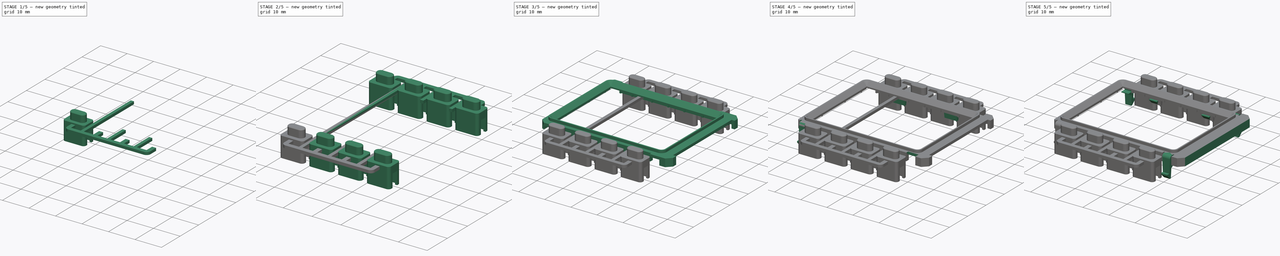
[diagram: build sequence overview — one tinted view per stage of 5, left to right]
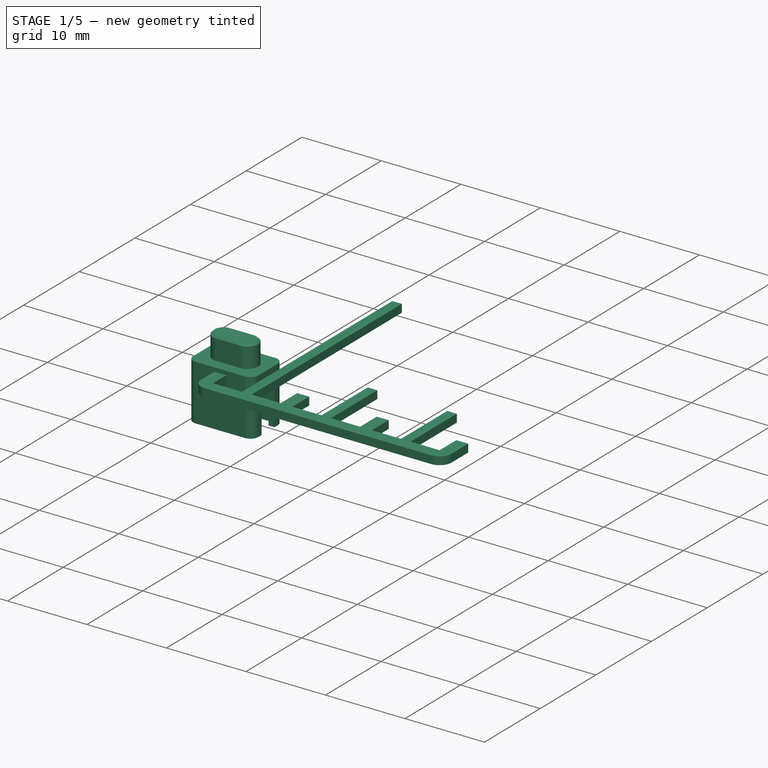
[diagram: stage 1 of 5 — iso view after this stage's code; geometry added in this stage tinted green]
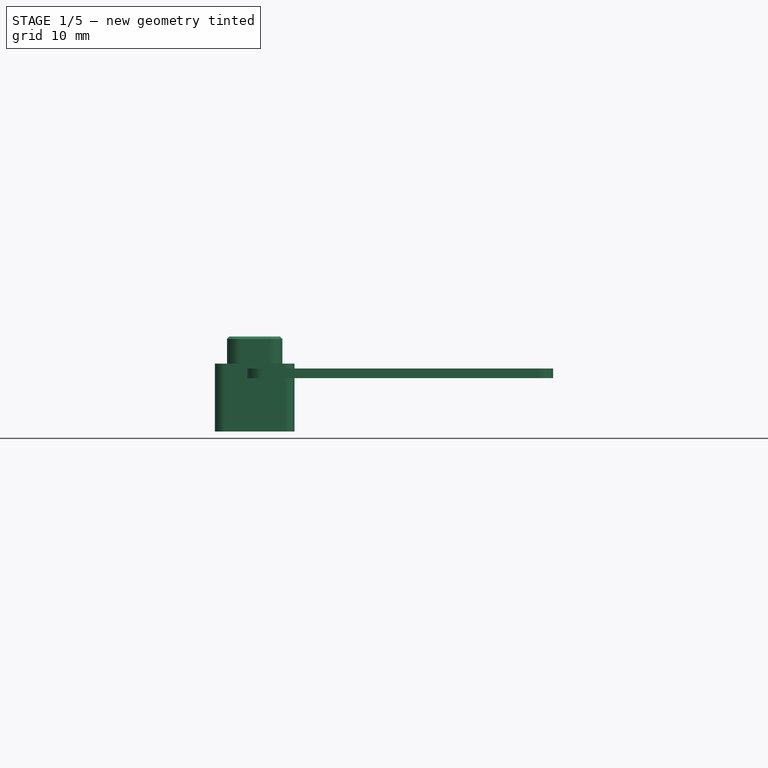
[diagram: stage 1 of 5 — front view after this stage's code; geometry added in this stage tinted green]
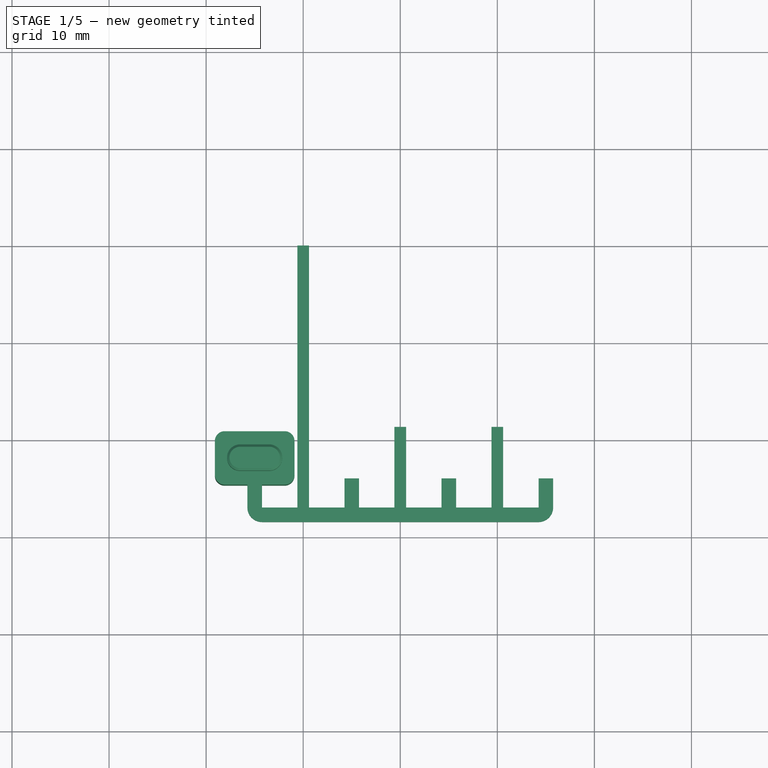
[diagram: stage 1 of 5 — top view after this stage's code; geometry added in this stage tinted green]
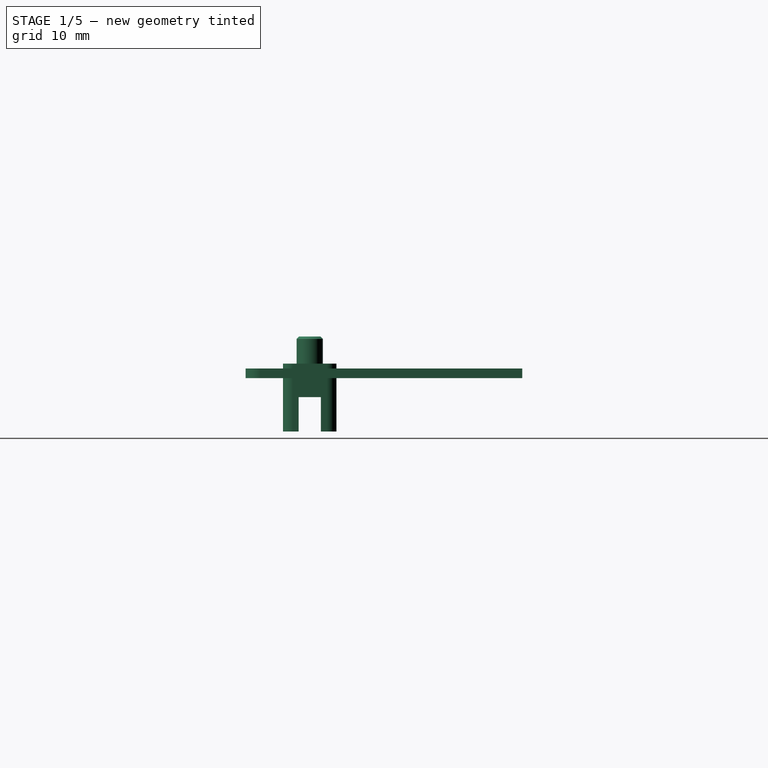
[diagram: stage 1 of 5 — right view after this stage's code; geometry added in this stage tinted green]
FCSTD DOCUMENT  (FreeCAD 1.0R38641 +678 (Git))
Label: PLASTIC-VSN1-DISPLAY-INTERFACE
License: All rights reserved
LicenseURL: https://en.wikipedia.org/wiki/All_rights_reserved
objects: Sketcher::SketchObject×16, PartDesign::Pad×11, PartDesign::Mirrored×7, PartDesign::Body×7, PartDesign::Plane×4, PartDesign::Pocket×4, PartDesign::CoordinateSystem×3, PartDesign::FeatureBase×3, PartDesign::Boolean×2, PartDesign::Draft×2, PartDesign::MultiTransform×2, Spreadsheet::Sheet×1, PartDesign::SubtractivePipe×1, PartDesign::Chamfer×1, PartDesign::Fillet×1
note: 134 computed .brp shape members not serialized (recipe doc carries the construction recipe); baked Part::Feature solids carry a one-line shape summary decoded from their .brp

FEATURE [PartDesign::Plane] DatumPlane002
  AttachmentOffset = pos=(0,0,7.5) rot=(0,0,1;0rad)
  AttachmentSupport = -> [XY_Plane001]
  Length = 60
  MapMode = 5
  Placement = pos=(0,0,7.5) rot=(0,0,1;0rad)
  ResizeMode = 0
  Width = 60
FEATURE [PartDesign::CoordinateSystem] LCS_002
  AttacherType = Attacher::AttachEngine3D
  Placement = pos=(15,1.41293e-11,0.5) rot=(0,0,1;0rad)
FEATURE [Sketcher::SketchObject] Sketch005
  ArcFitTolerance = 0
  AttachmentSupport = -> [XY_Plane002]
  FullyConstrained = true
  MakeInternals = false
  MapMode = 5
  expr: Constraints[32] = <<General>>.disp_butt_dist
  sketch-geometry (15):
    g0: ArcOfCircle CenterX=-16.5 CenterY=-21.9 CenterZ=0 NormalX=0 NormalY=0 NormalZ=1 AngleXU=0 Radius=1.35 StartAngle=1.5708 EndAngle=4.71239
    g1: ArcOfCircle CenterX=-13.5 CenterY=-21.9 CenterZ=0 NormalX=0 NormalY=0 NormalZ=1 AngleXU=0 Radius=1.35 StartAngle=4.71239 EndAngle=7.85398
    g2: LineSegment StartX=-16.5 StartY=-23.25 StartZ=0 EndX=-13.5 EndY=-23.25 EndZ=0
    g3: LineSegment StartX=-13.5 StartY=-20.55 StartZ=0 EndX=-16.5 EndY=-20.55 EndZ=0
    g4: ArcOfCircle [constr] CenterX=-16.5 CenterY=-21.9 CenterZ=0 NormalX=0 NormalY=0 NormalZ=1 AngleXU=0 Radius=1.5 StartAngle=1.5708 EndAngle=4.71239
    g5: ArcOfCircle [constr] CenterX=-13.5 CenterY=-21.9 CenterZ=0 NormalX=0 NormalY=0 NormalZ=1 AngleXU=0 Radius=1.5 StartAngle=4.71239 EndAngle=7.85398
    g6: LineSegment [constr] StartX=-16.5 StartY=-23.4 StartZ=0 EndX=-13.5 EndY=-23.4 EndZ=0
    g7: LineSegment [constr] StartX=-13.5 StartY=-20.4 StartZ=0 EndX=-16.5 EndY=-20.4 EndZ=0
    g8: LineSegment StartX=-20 StartY=-26.9 StartZ=0 EndX=-20 EndY=-16.9 EndZ=0
    g9: LineSegment StartX=-20 StartY=-16.9 StartZ=0 EndX=-10 EndY=-16.9 EndZ=0
    g10: LineSegment StartX=-10 StartY=-16.9 StartZ=0 EndX=-10 EndY=-26.9 EndZ=0
    g11: LineSegment StartX=-10 StartY=-26.9 StartZ=0 EndX=-20 EndY=-26.9 EndZ=0
    g12: GeomPoint X=-20 Y=-21.9 Z=0
    g13: GeomPoint X=-15 Y=-21.9 Z=0
    g14: GeomPoint X=-15 Y=-16.9 Z=0
  constraints (34):
    c: Tangent(g0,g2) = -1.5708
    c: Tangent(g2,g1) = -1.5708
    c: Tangent(g1,g3) = -1.5708
    c: Tangent(g3,g0) = -1.5708
    c: Equal(g0,g1)
    c: Diameter(g1) = 2.7
    c: DistanceX(g3,g3) = 3
    c: Tangent(g4,g6) = -1.5708
    c: Tangent(g6,g5) = -1.5708
    c: Tangent(g5,g7) = -1.5708
    c: Tangent(g7,g4) = -1.5708
    c: Equal(g4,g5)
    c: DistanceX(g4,g5) = 3
    c: Diameter(g5) = 3
    c: Coincident(g8,g9)
    c: Coincident(g9,g10)
    c: Coincident(g10,g11)
    c: Coincident(g11,g8)
    c: Horizontal(g9)
    c: Horizontal(g11)
    c: Vertical(g8)
    c: Vertical(g10)
    c: DistanceX(g9,g9) = 10
    c: DistanceY(g10,g10) = 10
    c: Horizontal(g3)
    c: Coincident(g4,g0)
    c: Horizontal(g7)
    c: Symmetric(g8,g8,g12)
    c: Horizontal(g0,g12)
    c: Symmetric(g0,g1,g13)
    c: Symmetric(g9,g9,g14)
    c: Vertical(g13,g14)
    c: Distance(g13,g-1) = 21.9
    c: Distance(g13,g-2) = 15
FEATURE [PartDesign::Plane] DatumPlane003
  AttachmentOffset = pos=(0,0,-7.5) rot=(0,0,1;0rad)
  AttachmentSupport = -> [XY_Plane002]
  Length = 60.3441
  MapMode = 5
  Placement = pos=(0,0,-7.5) rot=(0,0,1;0rad)
  ResizeMode = 0
  Width = 63.8441
FEATURE [Sketcher::SketchObject] Sketch026
  ArcFitTolerance = 0
  AttachmentOffset = pos=(0,0,0.5) rot=(0,0,1;0rad)
  AttachmentSupport = -> [DatumPlane003]
  FullyConstrained = true
  MakeInternals = false
  MapMode = 5
  Placement = pos=(0,0,-7) rot=(0,0,1;0rad)
  expr: Constraints[51] = <<General>>.disp_butt_dist
  sketch-geometry (24):
    g0: LineSegment [constr] StartX=-18 StartY=-23.55 StartZ=0 EndX=-18 EndY=-20.25 EndZ=0
    g1: LineSegment [constr] StartX=-18 StartY=-20.25 StartZ=0 EndX=-12 EndY=-20.25 EndZ=0
    g2: LineSegment [constr] StartX=-12 StartY=-20.25 StartZ=0 EndX=-12 EndY=-23.55 EndZ=0
    g3: LineSegment [constr] StartX=-12 StartY=-23.55 StartZ=0 EndX=-18 EndY=-23.55 EndZ=0
    g4: LineSegment [constr] StartX=-18.25 StartY=-23.85 StartZ=0 EndX=-18.25 EndY=-19.95 EndZ=0
    g5: LineSegment [constr] StartX=-18.25 StartY=-19.95 StartZ=0 EndX=-11.75 EndY=-19.95 EndZ=0
    g6: LineSegment [constr] StartX=-11.75 StartY=-19.95 StartZ=0 EndX=-11.75 EndY=-23.85 EndZ=0
    g7: LineSegment [constr] StartX=-11.75 StartY=-23.85 StartZ=0 EndX=-18.25 EndY=-23.85 EndZ=0
    g8: LineSegment StartX=-19.1 StartY=-23.65 StartZ=0 EndX=-19.1 EndY=-20.15 EndZ=0
    g9: LineSegment StartX=-18.1 StartY=-19.15 StartZ=0 EndX=-11.9 EndY=-19.15 EndZ=0
    g10: LineSegment StartX=-10.9 StartY=-20.15 StartZ=0 EndX=-10.9 EndY=-23.65 EndZ=0
    g11: LineSegment StartX=-11.9 StartY=-24.65 StartZ=0 EndX=-18.1 EndY=-24.65 EndZ=0
    g12: ArcOfCircle CenterX=-18.1 CenterY=-20.15 CenterZ=0 NormalX=0 NormalY=0 NormalZ=1 AngleXU=0 Radius=1 StartAngle=1.5708 EndAngle=3.14159
    g13: ArcOfCircle CenterX=-18.1 CenterY=-23.65 CenterZ=0 NormalX=0 NormalY=0 NormalZ=1 AngleXU=0 Radius=1 StartAngle=3.14159 EndAngle=4.71239
    g14: ArcOfCircle CenterX=-11.9 CenterY=-23.65 CenterZ=0 NormalX=0 NormalY=0 NormalZ=1 AngleXU=0 Radius=1 StartAngle=4.71239 EndAngle=6.28319
    g15: ArcOfCircle CenterX=-11.9 CenterY=-20.15 CenterZ=0 NormalX=0 NormalY=0 NormalZ=1 AngleXU=0 Radius=1 StartAngle=5e-16 EndAngle=1.5708
    g16: GeomPoint X=-18 Y=-21.9 Z=0
    g17: GeomPoint X=-18.25 Y=-21.9 Z=0
    g18: GeomPoint X=-15 Y=-19.95 Z=0
    g19: GeomPoint X=-15 Y=-20.25 Z=0
    g20: GeomPoint X=-15 Y=-19.15 Z=0
    g21: GeomPoint X=-19.1 Y=-21.9 Z=0
    g22: GeomPoint X=-15 Y=-21.9 Z=0
    g23: LineSegment [constr] StartX=-18 StartY=-21.9 StartZ=0 EndX=-12 EndY=-21.9 EndZ=0
  constraints (53):
    c: Coincident(g0,g1)
    c: Coincident(g1,g2)
    c: Coincident(g2,g3)
    c: Coincident(g3,g0)
    c: Horizontal(g1)
    c: Horizontal(g3)
    c: Vertical(g0)
    c: DistanceX(g1,g1) = 6
    c: DistanceY(g2,g2) = 3.3
    c: Coincident(g4,g5)
    c: Coincident(g5,g6)
    c: Coincident(g6,g7)
    c: Coincident(g7,g4)
    c: Horizontal(g5)
    c: Horizontal(g7)
    c: Vertical(g4)
    c: Vertical(g6)
    c: DistanceX(g5,g5) = 6.5
    c: DistanceY(g6,g6) = 3.9
    c: Horizontal(g11)
    c: Vertical(g8)
    c: Vertical(g10)
    c: Tangent(g9,g12) = 1.5708
    c: Tangent(g8,g12) = 1.5708
    c: Tangent(g11,g13) = 1.5708
    c: Tangent(g8,g13) = 1.5708
    c: Tangent(g10,g14) = 1.5708
    c: Tangent(g11,g14) = 1.5708
    c: Tangent(g10,g15) = 1.5708
    c: Tangent(g9,g15) = 1.5708
    c: DistanceY(g11,g9) = 5.5
    c: DistanceX(g8,g10) = 8.2
    c: Equal(g14,g13)
    c: Equal(g13,g12)
    c: Diameter(g14) = 2
    c: Horizontal(g9)
    c: Vertical(g2)
    c: Equal(g15,g14)
    c: Symmetric(g4,g4,g17)
    c: Symmetric(g5,g5,g18)
    c: Symmetric(g1,g1,g19)
    c: Symmetric(g9,g9,g20)
    c: Symmetric(g0,g0,g16)
    c: Symmetric(g8,g8,g21)
    c: Vertical(g18,g20)
    c: Horizontal(g17,g21)
    c: Vertical(g19,g18)
    c: Horizontal(g16,g17)
    c: Coincident(g23,g16)
    c: Symmetric(g2,g2,g23)
    c: Symmetric(g16,g23,g22)
    c: Distance(g22,g-1) = 21.9
    c: Distance(g22,g-2) = 15
FEATURE [PartDesign::Pad] Pad010
  Direction = (0,0,1)
  Length = 9.8
  Length2 = 10
  Placement = pos=(0,0,-7.5) rot=(0,0,1;0rad)
  Profile = -> Sketch026
  ReferenceAxis = -> Sketch026 [N_Axis]
  Suppressed = false
  Type = 0
FEATURE [Sketcher::SketchObject] Sketch027
  ArcFitTolerance = 0
  AttachmentSupport = -> [DatumPlane003]
  FullyConstrained = true
  MakeInternals = false
  MapMode = 5
  Placement = pos=(0,0,-7.5) rot=(0,0,1;0rad)
  expr: Constraints[39] = <<General>>.disp_butt_dist
  sketch-geometry (16):
    g0: LineSegment StartX=-18.35 StartY=-19.85 StartZ=0 EndX=-18.35 EndY=-20.75 EndZ=0
    g1: LineSegment StartX=-18.35 StartY=-23.95 StartZ=0 EndX=-11.65 EndY=-23.95 EndZ=0
    g2: LineSegment StartX=-11.65 StartY=-23.95 StartZ=0 EndX=-11.65 EndY=-23.05 EndZ=0
    g3: LineSegment StartX=-11.65 StartY=-19.85 StartZ=0 EndX=-18.35 EndY=-19.85 EndZ=0
    g4: GeomPoint [constr] X=0 Y=0 Z=0
    g5: LineSegment StartX=-18.35 StartY=-20.75 StartZ=0 EndX=-20.35 EndY=-20.75 EndZ=0
    g6: LineSegment StartX=-20.35 StartY=-20.75 StartZ=0 EndX=-20.35 EndY=-23.05 EndZ=0
    g7: LineSegment StartX=-20.35 StartY=-23.05 StartZ=0 EndX=-18.35 EndY=-23.05 EndZ=0
    g8: LineSegment StartX=-11.65 StartY=-20.75 StartZ=0 EndX=-9.65 EndY=-20.75 EndZ=0
    g9: LineSegment StartX=-9.65 StartY=-20.75 StartZ=0 EndX=-9.65 EndY=-23.05 EndZ=0
    g10: LineSegment StartX=-9.65 StartY=-23.05 StartZ=0 EndX=-11.65 EndY=-23.05 EndZ=0
    g11: LineSegment StartX=-11.65 StartY=-20.75 StartZ=0 EndX=-11.65 EndY=-19.85 EndZ=0
    g12: LineSegment StartX=-18.35 StartY=-23.05 StartZ=0 EndX=-18.35 EndY=-23.95 EndZ=0
    g13: GeomPoint X=-15 Y=-21.9 Z=0
    g14: GeomPoint X=-15 Y=-19.85 Z=0
    g15: GeomPoint X=-20.35 Y=-21.9 Z=0
  constraints (41):
    c: Coincident(g12,g1)
    c: Coincident(g1,g2)
    c: Coincident(g11,g3)
    c: Coincident(g3,g0)
    c: Horizontal(g1)
    c: Horizontal(g3)
    c: Vertical(g0)
    c: Vertical(g2)
    c: Coincident(g4,g-1)
    c: DistanceX(g1,g1) = 6.7
    c: DistanceY(g12,g0) = 4.1
    c: Coincident(g5,g6)
    c: Coincident(g6,g7)
    c: Horizontal(g5)
    c: Horizontal(g7)
    c: Vertical(g6)
    c: Coincident(g8,g9)
    c: Coincident(g9,g10)
    c: Horizontal(g8)
    c: Horizontal(g10)
    c: Vertical(g9)
    c: Equal(g6,g9)
    c: Coincident(g11,g8)
    c: Coincident(g0,g5)
    c: Vertical(g12)
    c: Coincident(g7,g12)
    c: Vertical(g11)
    c: Coincident(g10,g2)
    c: DistanceY(g6,g6) = 2.3
    c: DistanceX(g5,g5) = 2
    c: Equal(g8,g5)
    c: Equal(g0,g12)
    c: Equal(g2,g11)
    c: Equal(g5,g7)
    c: Equal(g10,g8)
    c: Symmetric(g3,g3,g14)
    c: Symmetric(g6,g6,g15)
    c: Vertical(g14,g13)
    c: Horizontal(g15,g13)
    c: Distance(g13,g-1) = 21.9
    c: Distance(g13,g-2) = 15
FEATURE [PartDesign::Pocket] Pocket
  BaseFeature = -> Pad010
  Direction = (0,0,-1)
  Length = 5
  Length2 = 5
  Placement = pos=(0,0,-7.5) rot=(0,0,1;0rad)
  Profile = -> Sketch027
  ReferenceAxis = -> Sketch027 [N_Axis]
  Reversed = true
  Suppressed = false
  Type = 0
FEATURE [Sketcher::SketchObject] Sketch006
  ArcFitTolerance = 1e-06
  AttachmentOffset = pos=(0,0,6) rot=(0,0,1;0rad)
  AttachmentSupport = -> [DatumPlane003]
  FullyConstrained = true
  MakeInternals = false
  MapMode = 5
  Placement = pos=(0,0,-1.5) rot=(0,0,1;0rad)
  sketch-geometry (42):
    g0: LineSegment StartX=-15.75 StartY=-24 StartZ=0 EndX=-15.75 EndY=-27 EndZ=0
    g1: LineSegment [constr] StartX=-15.75 StartY=-27 StartZ=0 EndX=-14.25 EndY=-27 EndZ=0
    g2: LineSegment StartX=-14.25 StartY=-27 StartZ=0 EndX=-14.25 EndY=-24 EndZ=0
    g3: LineSegment StartX=-14.25 StartY=-24 StartZ=0 EndX=-15.75 EndY=-24 EndZ=0
    g4: LineSegment StartX=-5.75 StartY=-24 StartZ=0 EndX=-5.75 EndY=-27 EndZ=0
    g5: LineSegment [constr] StartX=-5.75 StartY=-27 StartZ=0 EndX=-4.25 EndY=-27 EndZ=0
    g6: LineSegment StartX=-4.25 StartY=-27 StartZ=0 EndX=-4.25 EndY=-24 EndZ=0
    g7: LineSegment StartX=-4.25 StartY=-24 StartZ=0 EndX=-5.75 EndY=-24 EndZ=0
    g8: LineSegment StartX=4.25 StartY=-24 StartZ=0 EndX=4.25 EndY=-27 EndZ=0
    g9: LineSegment [constr] StartX=4.25 StartY=-27 StartZ=0 EndX=5.75 EndY=-27 EndZ=0
    g10: LineSegment StartX=5.75 StartY=-27 StartZ=0 EndX=5.75 EndY=-24 EndZ=0
    g11: LineSegment StartX=5.75 StartY=-24 StartZ=0 EndX=4.25 EndY=-24 EndZ=0
    g12: LineSegment StartX=14.25 StartY=-24 StartZ=0 EndX=14.25 EndY=-27 EndZ=0
    g13: LineSegment [constr] StartX=14.25 StartY=-27 StartZ=0 EndX=15.75 EndY=-27 EndZ=0
    g14: LineSegment StartX=15.75 StartY=-27 StartZ=0 EndX=15.75 EndY=-24 EndZ=0
    g15: LineSegment StartX=15.75 StartY=-24 StartZ=0 EndX=14.25 EndY=-24 EndZ=0
    g16: LineSegment [constr] StartX=-14.25 StartY=-24 StartZ=0 EndX=-5.75 EndY=-24 EndZ=0
    g17: LineSegment [constr] StartX=-4.25 StartY=-24 StartZ=0 EndX=4.25 EndY=-24 EndZ=0
    g18: LineSegment [constr] StartX=5.75 StartY=-24 StartZ=0 EndX=14.25 EndY=-24 EndZ=0
    g19: LineSegment [constr] StartX=14.25 StartY=-24 StartZ=0 EndX=15 EndY=-22 EndZ=0
    g20: LineSegment [constr] StartX=15 StartY=-22 StartZ=0 EndX=15.75 EndY=-24 EndZ=0
    g21: LineSegment StartX=-14.25 StartY=-27 StartZ=0 EndX=-10.6 EndY=-27 EndZ=0
    g22: LineSegment StartX=-4.25 StartY=-27 StartZ=0 EndX=-0.6 EndY=-27 EndZ=0
    g23: LineSegment StartX=5.75 StartY=-27 StartZ=0 EndX=9.4 EndY=-27 EndZ=0
    g24: LineSegment StartX=-14.25 StartY=-28.5 StartZ=0 EndX=14.25 EndY=-28.5 EndZ=0
    g25: ArcOfCircle CenterX=-14.25 CenterY=-27 CenterZ=0 NormalX=0 NormalY=0 NormalZ=1 AngleXU=0 Radius=1.5 StartAngle=3.14159 EndAngle=4.71239
    g26: ArcOfCircle CenterX=14.25 CenterY=-27 CenterZ=0 NormalX=0 NormalY=0 NormalZ=1 AngleXU=0 Radius=1.5 StartAngle=4.71239 EndAngle=6.28319
    g27: LineSegment StartX=0.6 StartY=-27 StartZ=0 EndX=4.25 EndY=-27 EndZ=0
    g28: LineSegment StartX=-0.6 StartY=-27 StartZ=0 EndX=-0.6 EndY=-18.7 EndZ=0
    g29: LineSegment StartX=0.6 StartY=-27 StartZ=0 EndX=0.6 EndY=-18.7 EndZ=0
    g30: LineSegment StartX=-0.6 StartY=-18.7 StartZ=0 EndX=0.6 EndY=-18.7 EndZ=0
    g31: LineSegment [constr] StartX=-15.75 StartY=-24 StartZ=0 EndX=-15 EndY=-22 EndZ=0
    g32: LineSegment [constr] StartX=-14.25 StartY=-24 StartZ=0 EndX=-15 EndY=-22 EndZ=0
    g33: GeomPoint X=0 Y=-28.5 Z=0
    g34: LineSegment StartX=-10.6 StartY=-27 StartZ=0 EndX=-10.6 EndY=0 EndZ=0
    g35: LineSegment StartX=-10.6 StartY=0 StartZ=0 EndX=-9.4 EndY=0 EndZ=0
    g36: LineSegment StartX=-9.4 StartY=0 StartZ=0 EndX=-9.4 EndY=-27 EndZ=0
    g37: LineSegment StartX=9.4 StartY=-27 StartZ=0 EndX=9.4 EndY=-18.7 EndZ=0
    g38: LineSegment StartX=9.4 StartY=-18.7 StartZ=0 EndX=10.6 EndY=-18.7 EndZ=0
    g39: LineSegment StartX=10.6 StartY=-18.7 StartZ=0 EndX=10.6 EndY=-27 EndZ=0
    g40: LineSegment StartX=-9.4 StartY=-27 StartZ=0 EndX=-5.75 EndY=-27 EndZ=0
    g41: LineSegment StartX=10.6 StartY=-27 StartZ=0 EndX=14.25 EndY=-27 EndZ=0
  constraints (115):
    c: Coincident(g0,g1)
    c: Coincident(g1,g2)
    c: Coincident(g2,g3)
    c: Coincident(g3,g0)
    c: Vertical(g0)
    c: Vertical(g2)
    c: Horizontal(g1)
    c: Horizontal(g3)
    c: Coincident(g4,g5)
    c: Coincident(g5,g6)
    c: Coincident(g6,g7)
    c: Coincident(g7,g4)
    c: Vertical(g4)
    c: Vertical(g6)
    c: Horizontal(g5)
    c: Horizontal(g7)
    c: Coincident(g8,g9)
    c: Coincident(g9,g10)
    c: Coincident(g10,g11)
    c: Coincident(g11,g8)
    c: Vertical(g8)
    c: Vertical(g10)
    c: Horizontal(g9)
    c: Horizontal(g11)
    c: Coincident(g12,g13)
    c: Coincident(g13,g14)
    c: Coincident(g14,g15)
    c: Coincident(g15,g12)
    c: Vertical(g12)
    c: Vertical(g14)
    c: Horizontal(g13)
    c: Horizontal(g15)
    c: Equal(g2,g6)
    c: Equal(g6,g10)
    c: Equal(g10,g14)
    c: Equal(g3,g7)
    c: Equal(g7,g11)
    c: Equal(g11,g15)
    c: Coincident(g16,g2)
    c: Coincident(g16,g4)
    c: Horizontal(g16)
    c: Coincident(g17,g6)
    c: Coincident(g17,g8)
    c: Horizontal(g17)
    c: Coincident(g18,g10)
    c: Coincident(g18,g12)
    c: Horizontal(g18)
    c: Coincident(g19,g12)
    c: Coincident(g20,g19)
    c: Coincident(g20,g14)
    c: Equal(g19,g20)
    c: Equal(g18,g17)
    c: Equal(g17,g16)
    c: DistanceX(g1,g1) = 1.5
    c: DistanceY(g0,g0) = 3
    c: Coincident(g21,g1)
    c: Coincident(g40,g4)
    c: Coincident(g22,g5)
    c: Coincident(g27,g8)
    c: Coincident(g23,g9)
    c: Coincident(g41,g12)
    c: Coincident(g25,g1)
    c: Coincident(g25,g0)
    c: Tangent(g25,g24) = -1.5708
    c: Coincident(g26,g12)
    c: Coincident(g26,g13)
    c: Tangent(g26,g24) = -1.5708
    c: Equal(g22,g27)
    c: Horizontal(g27)
    c: Horizontal(g22)
    c: Coincident(g28,g22)
    c: Vertical(g28)
    c: Coincident(g29,g27)
    c: Vertical(g29)
    c: Coincident(g31,g0)
    c: Coincident(g32,g2)
    c: Coincident(g32,g31)
    c: Equal(g31,g32)
    c: Distance(g31,g3) = 2
    c: Equal(g32,g19)
    c: DistanceX(g31,g19) = 30
    c: Symmetric(g24,g24,g33)
    c: PointOnObject(g33,g-2)
    c: Distance(g-1,g17) = 24
    c: Coincident(g29,g30)
    c: Coincident(g28,g30)
    c: Vertical(g34)
    c: Coincident(g35,g34)
    c: Coincident(g36,g35)
    c: PointOnObject(g36,g40)
    c: Vertical(g36)
    c: Coincident(g38,g37)
    c: Coincident(g39,g38)
    c: Vertical(g39)
    c: Vertical(g37)
    c: PointOnObject(g39,g41)
    c: Coincident(g21,g34)
    c: PointOnObject(g40,g36)
    c: Coincident(g23,g37)
    c: PointOnObject(g41,g39)
    c: Equal(g35,g30)
    c: Horizontal(g40)
    c: Horizontal(g23)
    c: Equal(g21,g40)
    c: Equal(g23,g41)
    c: Horizontal(g21)
    c: Horizontal(g41)
    c: Horizontal(g38)
    c: DistanceX(g35,g35) = 1.2
    c: Equal(g35,g38)
    c: Horizontal(g30)
    c: Horizontal(g35)
    c: Distance(g28,g28) = 8.3
    c: Equal(g28,g37)
    c: PointOnObject(g34,g-1)
FEATURE [PartDesign::Pad] Pad002
  Direction = (0,0,1)
  Length = 1
  Length2 = 10
  Placement = pos=(0,0,-7.5) rot=(0,0,1;0rad)
  Profile = -> Sketch006
  ReferenceAxis = -> Sketch006 [N_Axis]
  Suppressed = false
  Type = 0
FEATURE [PartDesign::Plane] DatumPlane004
  AttachmentOffset = pos=(0,0,21.9) rot=(0,0,1;0rad)
  AttachmentSupport = -> [XZ_Plane002]
  Length = 60
  MapMode = 5
  Placement = pos=(0,-21.9,4.9e-15) rot=(1,0,0;1.5708rad)
  ResizeMode = 0
  Width = 60
  expr: .AttachmentOffset.Base.z = <<General>>.disp_butt_dist
FEATURE [PartDesign::Body] Body002  label="PLASTIC-VSN1-BUTTON_channel"
  AllowCompound = false
  Group = -> [DatumPlane004,DatumPlane003,Sketch006,Pad002,LCS_002]
  Origin = -> Origin002
  Tip = -> Pad002
FEATURE [Sketcher::SketchObject] Sketch028
  ArcFitTolerance = 0
  AttachmentSupport = -> [DatumPlane004]
  FullyConstrained = true
  MakeInternals = false
  MapMode = 5
  Placement = pos=(0,-21.9,4.9e-15) rot=(1,0,0;1.5708rad)
  sketch-geometry (11):
    g0: LineSegment StartX=-15.5 StartY=-2.5 StartZ=0 EndX=-16 EndY=-2.5 EndZ=0
    g1: LineSegment StartX=-16 StartY=-2.5 StartZ=0 EndX=-16 EndY=-3.45 EndZ=0
    g2: LineSegment StartX=-16 StartY=-3.45 StartZ=0 EndX=-15.5 EndY=-3.45 EndZ=0
    g3: LineSegment StartX=-15.5 StartY=-3.45 StartZ=0 EndX=-15.5 EndY=-2.5 EndZ=0
    g4: LineSegment StartX=-14.5 StartY=-2.5 StartZ=0 EndX=-14 EndY=-2.5 EndZ=0
    g5: LineSegment StartX=-14 StartY=-2.5 StartZ=0 EndX=-14 EndY=-3.45 EndZ=0
    g6: LineSegment StartX=-14 StartY=-3.45 StartZ=0 EndX=-14.5 EndY=-3.45 EndZ=0
    g7: LineSegment StartX=-14.5 StartY=-3.45 StartZ=0 EndX=-14.5 EndY=-2.5 EndZ=0
    g8: GeomPoint [constr] X=-15.75 Y=-2.5 Z=0
    g9: GeomPoint [constr] X=-14.25 Y=-2.5 Z=0
    g10: GeomPoint X=-15 Y=-2.5 Z=0
  constraints (27):
    c: Coincident(g0,g1)
    c: Coincident(g1,g2)
    c: Coincident(g2,g3)
    c: Coincident(g3,g0)
    c: Horizontal(g0)
    c: Horizontal(g2)
    c: Vertical(g1)
    c: Vertical(g3)
    c: Coincident(g4,g5)
    c: Coincident(g5,g6)
    c: Coincident(g6,g7)
    c: Coincident(g7,g4)
    c: Horizontal(g4)
    c: Horizontal(g6)
    c: Vertical(g5)
    c: Vertical(g7)
    c: Equal(g4,g0)
    c: Equal(g7,g1)
    c: DistanceX(g4,g4) = 0.5
    c: DistanceX(g8,g9) = 1.5
    c: DistanceY(g-1,g4) = -2.5
    c: Symmetric(g4,g4,g9)
    c: Symmetric(g0,g0,g8)
    c: Distance(g10,g-2) = 15
    c: DistanceY(g1,g1) = 0.95
    c: Horizontal(g0,g4)
    c: Symmetric(g0,g4,g10)
FEATURE [PartDesign::Pad] Pad011
  BaseFeature = -> Pocket
  Direction = (0,-1,2e-16)
  Length = 4.4
  Length2 = 10
  Midplane = true
  Placement = pos=(0,0,-7.5) rot=(0,0,1;0rad)
  Profile = -> Sketch028
  ReferenceAxis = -> Sketch028 [N_Axis]
  Suppressed = false
  Type = 0
FEATURE [PartDesign::Pocket] Pocket002
  BaseFeature = -> Pad011
  Direction = (0,0,-1)
  Length = 5
  Length2 = 5
  Placement = pos=(0,0,-7.5) rot=(0,0,1;0rad)
  Profile = -> Sketch005
  ReferenceAxis = -> Sketch005 [N_Axis]
  Refine = true
  Reversed = true
  Suppressed = false
  Type = 1
FEATURE [PartDesign::Chamfer] Chamfer
  Angle = 45
  Base = -> Pocket002 [Face35]
  BaseFeature = -> Pocket002
  ChamferType = 0
  FlipDirection = false
  Placement = pos=(0,0,-7.5) rot=(0,0,1;0rad)
  Refine = true
  Size = 0.25
  Size2 = 1
  SupportTransform = false
  Suppressed = false
  UseAllEdges = false
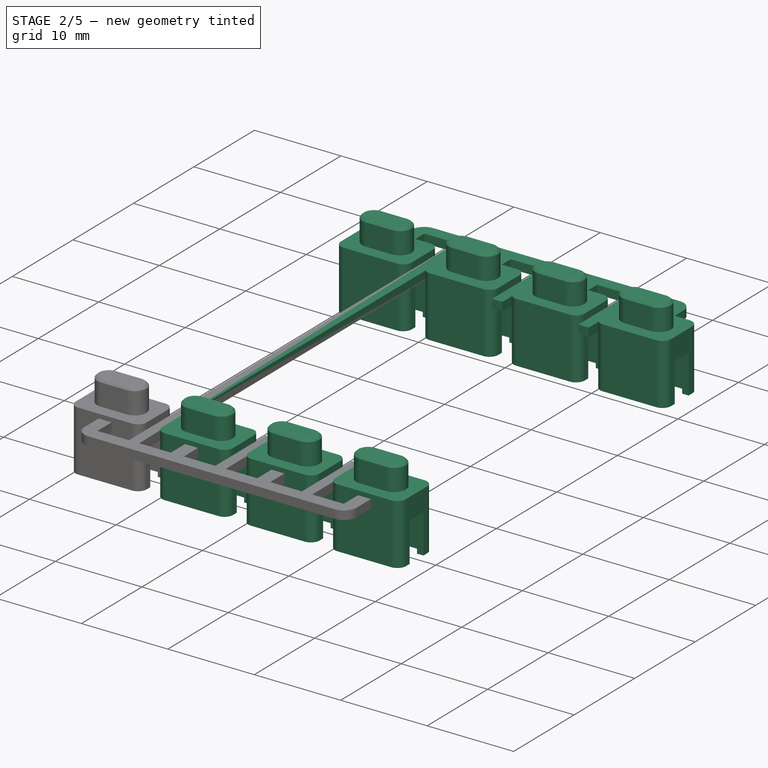
[diagram: stage 2 of 5 — iso view after this stage's code; geometry added in this stage tinted green]
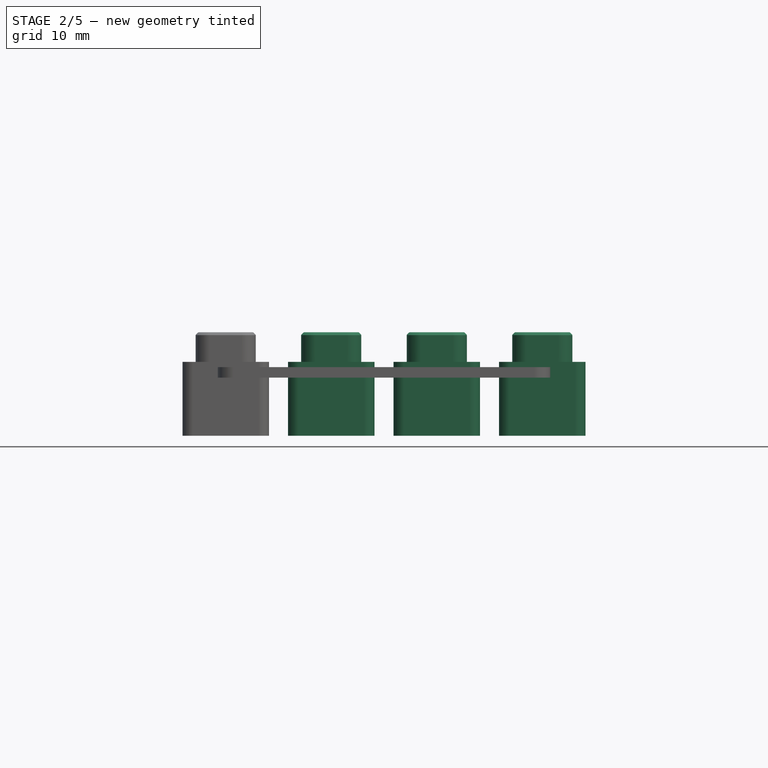
[diagram: stage 2 of 5 — front view after this stage's code; geometry added in this stage tinted green]
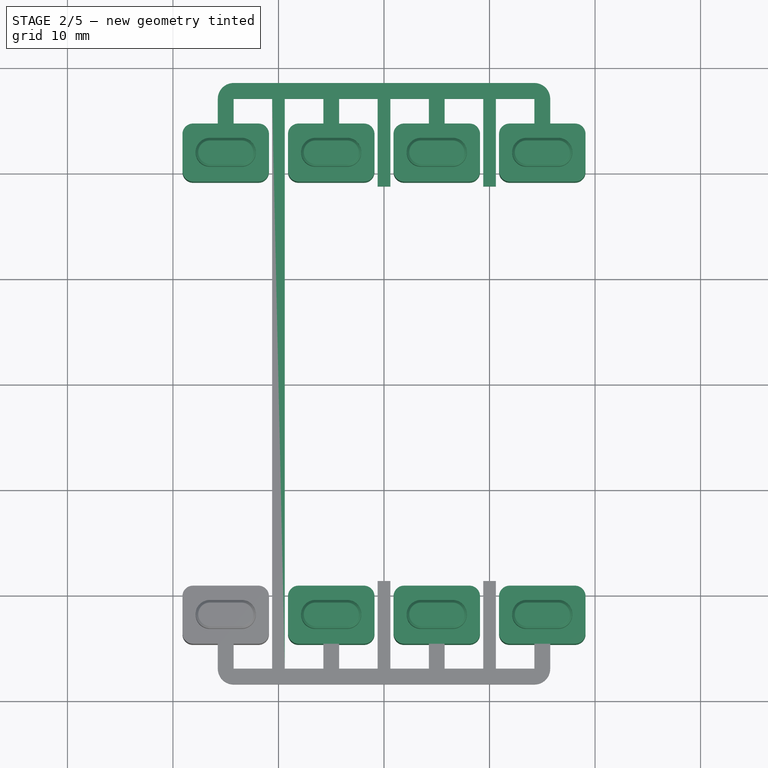
[diagram: stage 2 of 5 — top view after this stage's code; geometry added in this stage tinted green]
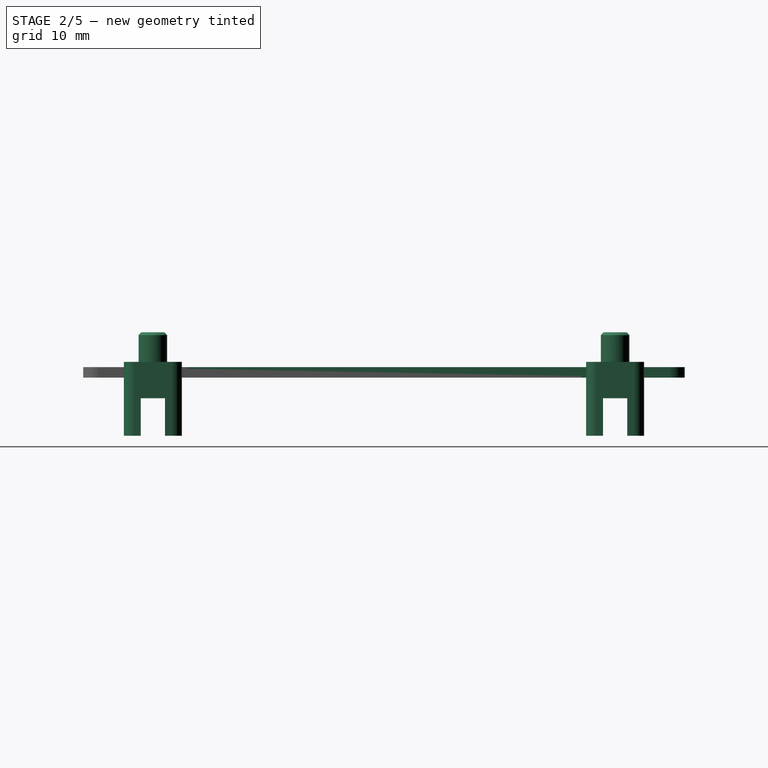
[diagram: stage 2 of 5 — right view after this stage's code; geometry added in this stage tinted green]
FEATURE [PartDesign::Fillet] Fillet
  Base = -> Chamfer [Edge25,Edge9,Edge27,Edge26,Edge21,Edge23,Edge2,Edge6]
  BaseFeature = -> Chamfer
  Placement = pos=(0,0,-7.5) rot=(0,0,1;0rad)
  Radius = 0.1
  Refine = true
  SupportTransform = false
  Suppressed = false
  UseAllEdges = false
FEATURE [PartDesign::Body] Body001  label="PLASTIC-VSN1-BUTTON_base_imported"
  AllowCompound = false
  Group = -> [Sketch026,Pad010,Sketch027,Pocket,Sketch028,Pad011,DatumPlane002,Sketch005,Pocket002,Chamfer,Fillet]
  Origin = -> Origin001
  Tip = -> Fillet
FEATURE [PartDesign::FeatureBase] Clone
  BaseFeature = -> Body001
  Suppressed = false
FEATURE [PartDesign::Body] Body003  label="Clone1"
  AllowCompound = false
  Group = -> [Clone]
  Origin = -> Origin003
  Placement = pos=(10,0,0) rot=(0,0,1;0rad)
  Tip = -> Clone
FEATURE [PartDesign::FeatureBase] Clone001
  BaseFeature = -> Body001
  Suppressed = false
FEATURE [PartDesign::Body] Body004  label="Clone2"
  AllowCompound = false
  Group = -> [Clone001]
  Origin = -> Origin004
  Placement = pos=(20,0,0) rot=(0,0,1;0rad)
  Tip = -> Clone001
FEATURE [PartDesign::FeatureBase] Clone002
  BaseFeature = -> Body001
  Suppressed = false
FEATURE [PartDesign::Body] Body005  label="Clone3"
  AllowCompound = false
  Group = -> [Clone002]
  Origin = -> Origin005
  Placement = pos=(30,0,0) rot=(0,0,1;0rad)
  Tip = -> Clone002
FEATURE [PartDesign::Boolean] Boolean
  Group = -> [Body001,Body002,Body003,Body004,Body005]
  Refine = true
  Suppressed = false
  Type = 0
  UsePlacement = true
FEATURE [PartDesign::Mirrored] Mirrored006
  BaseFeature = -> Boolean
  MirrorPlane = -> XZ_Plane006
  Refine = true
  Suppressed = false
  TransformMode = 1
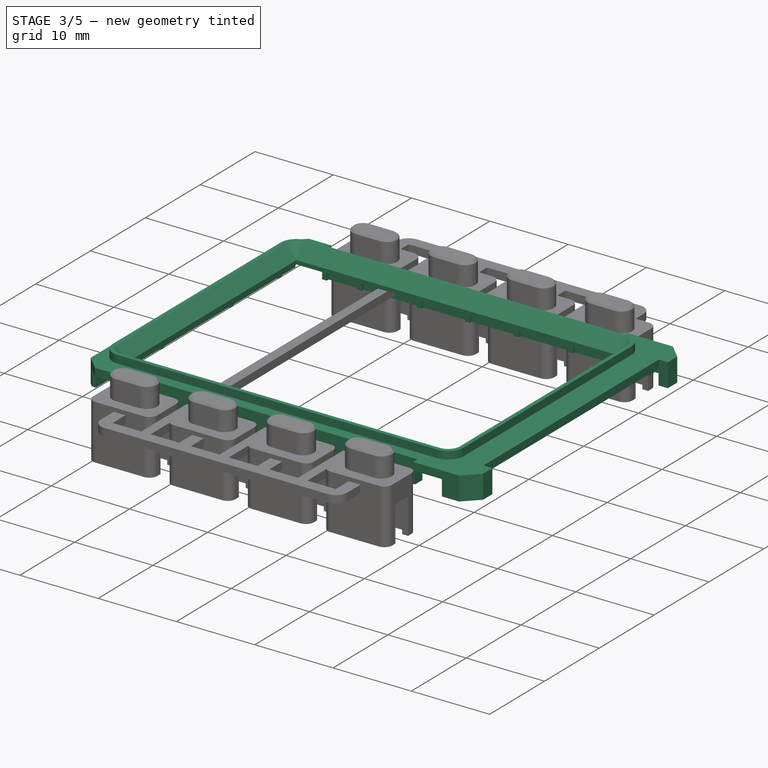
[diagram: stage 3 of 5 — iso view after this stage's code; geometry added in this stage tinted green]
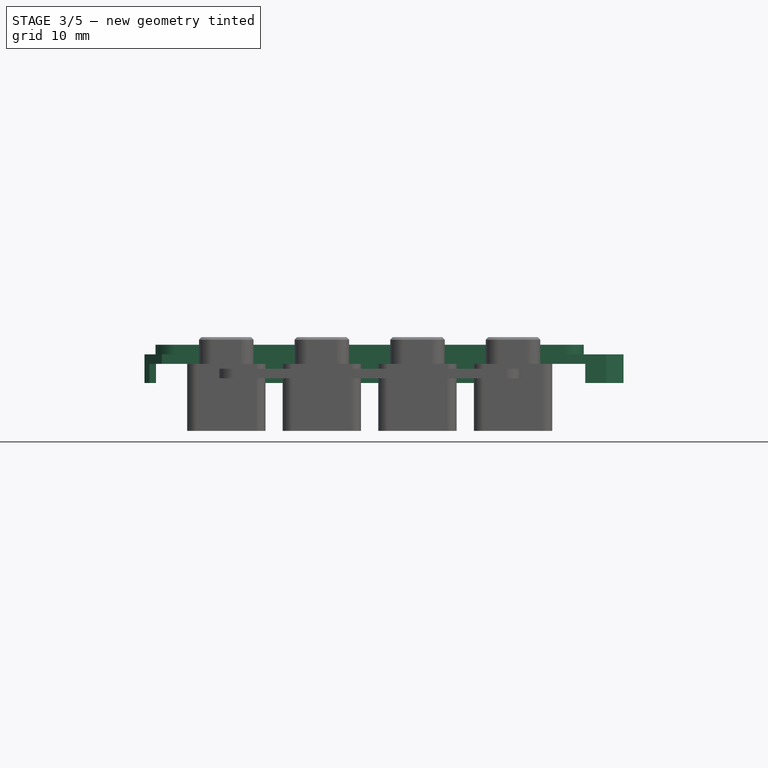
[diagram: stage 3 of 5 — front view after this stage's code; geometry added in this stage tinted green]
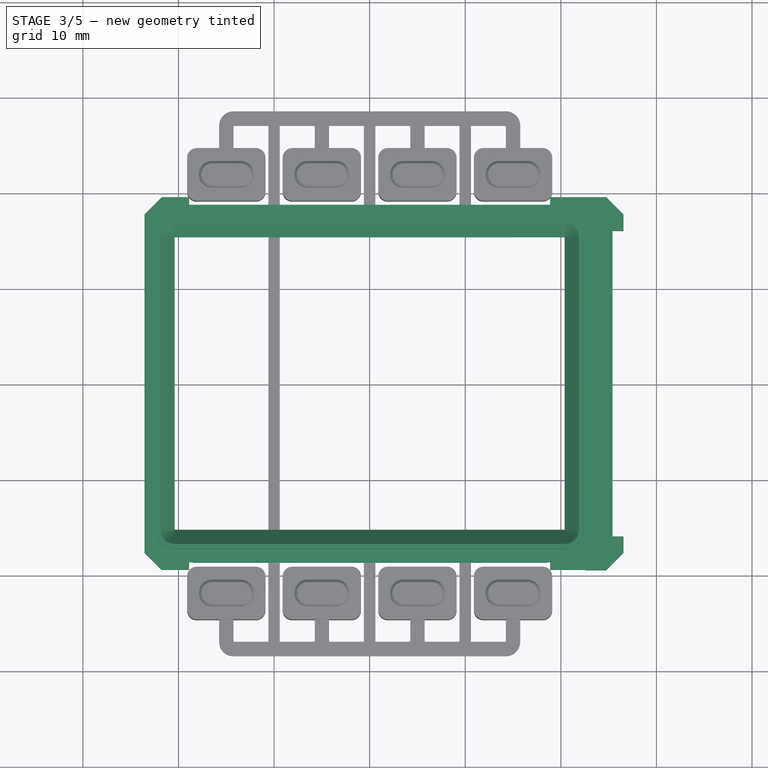
[diagram: stage 3 of 5 — top view after this stage's code; geometry added in this stage tinted green]
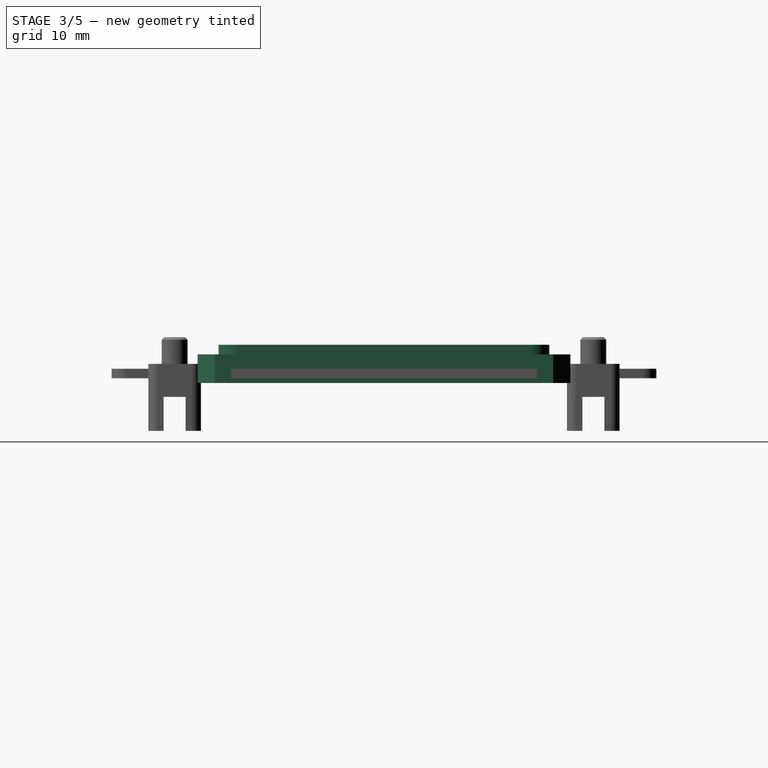
[diagram: stage 3 of 5 — right view after this stage's code; geometry added in this stage tinted green]
FEATURE [PartDesign::Plane] DatumPlane001
  AttachmentOffset = pos=(0,0,-20.55) rot=(0,0,1;0rad)
  AttachmentSupport = -> [YZ_Plane]
  Length = 67.6771
  MapMode = 5
  Placement = pos=(-20.55,0,0) rot=(0.57735,0.57735,0.57735;2.0944rad)
  ResizeMode = 0
  Width = 60.6771
FEATURE [PartDesign::CoordinateSystem] LCS_1
  AttacherType = Attacher::AttachEngine3D
FEATURE [PartDesign::Mirrored] Mirrored003
  MirrorPlane = -> YZ_Plane
  Refine = true
  Suppressed = false
  TransformMode = 0
FEATURE [Sketcher::SketchObject] Sketch
  ArcFitTolerance = 0
  AttachmentSupport = -> [XY_Plane]
  FullyConstrained = true
  MakeInternals = false
  MapMode = 5
  sketch-geometry (12):
    g0: LineSegment StartX=-20.4 StartY=0 StartZ=0 EndX=-20.4 EndY=15.3 EndZ=0
    g1: LineSegment StartX=-20.4 StartY=15.3 StartZ=0 EndX=20.4 EndY=15.3 EndZ=0
    g2: LineSegment StartX=20.4 StartY=15.3 StartZ=0 EndX=20.4 EndY=0 EndZ=0
    g3: GeomPoint [constr] X=0 Y=0 Z=0
    g4: LineSegment StartX=-22.4 StartY=0 StartZ=0 EndX=-22.4 EndY=15.3 EndZ=0
    g5: LineSegment StartX=-20.4 StartY=17.3 StartZ=0 EndX=20.4 EndY=17.3 EndZ=0
    g6: LineSegment StartX=22.4 StartY=15.3 StartZ=0 EndX=22.4 EndY=0 EndZ=0
    g7: GeomPoint [constr] X=0 Y=0 Z=0
    g8: ArcOfCircle CenterX=-20.4 CenterY=15.3 CenterZ=0 NormalX=0 NormalY=0 NormalZ=1 AngleXU=0 Radius=2 StartAngle=1.5708 EndAngle=3.14159
    g9: ArcOfCircle CenterX=20.4 CenterY=15.3 CenterZ=0 NormalX=0 NormalY=0 NormalZ=1 AngleXU=0 Radius=2 StartAngle=0 EndAngle=1.5708
    g10: LineSegment StartX=-22.4 StartY=0 StartZ=0 EndX=-20.4 EndY=0 EndZ=0
    g11: LineSegment StartX=20.4 StartY=0 StartZ=0 EndX=22.4 EndY=0 EndZ=0
  constraints (29):
    c: Coincident(g0,g1)
    c: Coincident(g1,g2)
    c: Horizontal(g1)
    c: Vertical(g0)
    c: Vertical(g2)
    c: Coincident(g3,g-1)
    c: Horizontal(g5)
    c: Vertical(g4)
    c: Vertical(g6)
    c: Coincident(g7,g3)
    c: DistanceX(g1,g1) = 40.8
    c: Tangent(g5,g8) = 1.5708
    c: Tangent(g4,g8) = 1.5708
    c: Tangent(g5,g9) = 1.5708
    c: Tangent(g6,g9) = 1.5708
    c: Coincident(g8,g0)
    c: Coincident(g9,g1)
    c: DistanceX(g4,g6) = 44.8
    c: DistanceY(g3,g1) = 15.3
    c: DistanceY(g3,g5) = 17.3
    c: Symmetric(g0,g2,g3)
    c: Coincident(g6,g11)
    c: Coincident(g4,g10)
    c: Coincident(g0,g10)
    c: Horizontal(g10)
    c: PointOnObject(g0,g-1)
    c: Coincident(g2,g11)
    c: Horizontal(g11)
    c: Distance(g6,g2) = 2
FEATURE [PartDesign::Pad] Pad  label="Frame"
  Direction = (0,0,1)
  Length = 2
  Length2 = 10
  Profile = -> Sketch
  ReferenceAxis = -> Sketch [N_Axis]
  Refine = true
  Suppressed = false
  Type = 0
  expr: Length = <<General>>.frameheight
FEATURE [Sketcher::SketchObject] Sketch001
  ArcFitTolerance = 0
  AttachmentSupport = -> [YZ_Plane]
  FullyConstrained = true
  MakeInternals = false
  MapMode = 5
  Placement = pos=(0,0,0) rot=(0.57735,0.57735,0.57735;2.0944rad)
  expr: Constraints[6] = <<General>>.frameheight
  sketch-geometry (4):
    g0: LineSegment StartX=15.3 StartY=2 StartZ=0 EndX=15.3 EndY=0.5 EndZ=0
    g1: LineSegment StartX=15.3 StartY=2 StartZ=0 EndX=16.8 EndY=2 EndZ=0
    g2: LineSegment StartX=16.8 StartY=2 StartZ=0 EndX=15.3 EndY=0.5 EndZ=0
    g3: LineSegment [constr] StartX=17.3 StartY=2 StartZ=0 EndX=17.3 EndY=0 EndZ=0
  constraints (15):
    c: Vertical(g0)
    c: DistanceX(g0,g-1) = -15.3
    c: DistanceY(g0,g0) = 1.5
    c: Horizontal(g1)
    c: Coincident(g2,g1)
    c: DistanceX(g1,g1) = 1.5
    c: DistanceY(g-1,g1) = 2
    c: Coincident(g1,g0)
    c: Coincident(g2,g0)
    c: Angle(g1,g2) = 0.785398
    c: PointOnObject(g3,g-1)
    c: Vertical(g3)
    c: Horizontal(g1,g3)
    c: Distance(g0,g3) = 2
    c: Distance(g3,g1) = 0.5
FEATURE [Sketcher::SketchObject] Sketch002
  ArcFitTolerance = 0
  AttachmentSupport = -> [XY_Plane]
  FullyConstrained = true
  MakeInternals = false
  MapMode = 5
  sketch-geometry (25):
    g0: LineSegment StartX=-21 StartY=15.9 StartZ=0 EndX=21 EndY=15.9 EndZ=0
    g1: LineSegment StartX=24.75 StartY=19.5 StartZ=0 EndX=18.8856 EndY=19.5 EndZ=0
    g2: LineSegment StartX=-23.55 StartY=17.7 StartZ=0 EndX=-23.55 EndY=0 EndZ=0
    g3: LineSegment StartX=-21 StartY=15.9 StartZ=0 EndX=-21 EndY=0 EndZ=0
    g4: LineSegment StartX=26.55 StartY=17.7 StartZ=0 EndX=26.55 EndY=16 EndZ=0
    g5: LineSegment StartX=21 StartY=15.9 StartZ=0 EndX=21 EndY=0 EndZ=0
    g6: LineSegment StartX=-23.55 StartY=17.7 StartZ=0 EndX=-21.75 EndY=19.5 EndZ=0
    g7: LineSegment StartX=24.75 StartY=19.5 StartZ=0 EndX=26.55 EndY=17.7 EndZ=0
    g8: LineSegment [constr] StartX=24.75 StartY=19.5 StartZ=0 EndX=26.55 EndY=19.5 EndZ=0
    g9: LineSegment [constr] StartX=26.55 StartY=17.7 StartZ=0 EndX=26.55 EndY=19.5 EndZ=0
    g10: LineSegment [constr] StartX=-22.4 StartY=17.3 StartZ=0 EndX=25.4 EndY=17.3 EndZ=0
    g11: GeomPoint [constr] X=1.5 Y=0 Z=0
    g12: LineSegment StartX=26.55 StartY=16 StartZ=0 EndX=25.4 EndY=16 EndZ=0
    g13: LineSegment StartX=25.4 StartY=16 StartZ=0 EndX=25.4 EndY=0 EndZ=0
    g14: LineSegment [constr] StartX=17.5 StartY=18.7 StartZ=0 EndX=18.8856 EndY=19.5 EndZ=0
    g15: LineSegment [constr] StartX=-17.5 StartY=18.7 StartZ=0 EndX=17.5 EndY=18.7 EndZ=0
    g16: LineSegment [constr] StartX=-17.5 StartY=18.7 StartZ=0 EndX=-18.8856 EndY=19.5 EndZ=0
    g17: LineSegment StartX=-21.75 StartY=19.5 StartZ=0 EndX=-18.8856 EndY=19.5 EndZ=0
    g18: LineSegment StartX=-23.55 StartY=0 StartZ=0 EndX=-21 EndY=0 EndZ=0
    g19: LineSegment StartX=21 StartY=0 StartZ=0 EndX=25.4 EndY=0 EndZ=0
    g20: LineSegment [constr] StartX=25.4 StartY=17.3 StartZ=0 EndX=25.4 EndY=0 EndZ=0
    g21: LineSegment [constr] StartX=-22.4 StartY=0 StartZ=0 EndX=-22.4 EndY=17.3 EndZ=0
    g22: LineSegment StartX=18.8856 StartY=18.7 StartZ=0 EndX=-18.8856 EndY=18.7 EndZ=0
    g23: LineSegment StartX=-18.8856 StartY=19.5 StartZ=0 EndX=-18.8856 EndY=18.7 EndZ=0
    g24: LineSegment StartX=18.8856 StartY=19.5 StartZ=0 EndX=18.8856 EndY=18.7 EndZ=0
  constraints (70):
    c: Horizontal(g0)
    c: Horizontal(g1)
    c: DistanceX(g0,g-1) = 21
    c: Coincident(g0,g3)
    c: Vertical(g5)
    c: Coincident(g0,g5)
    c: Coincident(g2,g6)
    c: Angle(g2,g6) = 2.35619
    c: Vertical(g4)
    c: Coincident(g1,g7)
    c: Coincident(g4,g7)
    c: Angle(g7,g4) = 2.35619
    c: DistanceY(g-1,g1) = 19.5
    c: DistanceX(g2,g-1) = 23.55
    c: Coincident(g8,g1)
    c: Horizontal(g8)
    c: Coincident(g9,g4)
    c: Coincident(g9,g8)
    c: Vertical(g9)
    c: Coincident(g21,g10)
    c: Coincident(g10,g20)
    c: Horizontal(g10)
    c: PointOnObject(g11,g-1)
    c: DistanceX(g10,g10) = 47.8
    c: Horizontal(g12)
    c: Coincident(g4,g12)
    c: DistanceY(g4,g8) = 3.5
    c: Coincident(g13,g12)
    c: Coincident(g14,g15)
    c: Coincident(g1,g14)
    c: Angle(g14,g1) = 2.61799
    c: DistanceY(g4,g1) = 1.8
    c: Coincident(g16,g15)
    c: Equal(g16,g14)
    c: Coincident(g17,g6)
    c: Coincident(g17,g16)
    c: Horizontal(g17)
    c: DistanceY(g-1,g0) = 15.9
    c: DistanceY(g-1,g21) = 17.3
    c: DistanceY(g-1,g2) = 17.7
    c: DistanceX(g15,g-1) = 17.5
    c: Vertical(g20)
    c: PointOnObject(g12,g20)
    c: Vertical(g21)
    c: Coincident(g20,g13)
    c: PointOnObject(g19,g-1)
    c: Coincident(g3,g18)
    c: PointOnObject(g3,g-1)
    c: Vertical(g3)
    c: Coincident(g5,g19)
    c: DistanceX(g12,g12) = 1.15
    c: Coincident(g2,g18)
    c: Horizontal(g18)
    c: Vertical(g2)
    c: Coincident(g19,g13)
    c: Horizontal(g16,g1)
    c: Symmetric(g3,g5,g-1)
    c: DistanceX(g21,g-1) = 22.4
    c: Symmetric(g21,g19,g11)
    c: DistanceY(g-1,g14) = 18.7
    c: Symmetric(g15,g14,g-2)
    c: Horizontal(g22)
    c: PointOnObject(g15,g22)
    c: Coincident(g23,g16)
    c: Vertical(g23)
    c: Coincident(g22,g23)
    c: Coincident(g24,g1)
    c: Coincident(g22,g24)
    c: Vertical(g24)
    c: Distance(g13,g-2) = 25.4
FEATURE [Sketcher::SketchObject] Sketch017
  ArcFitTolerance = 0
  AttachmentSupport = -> [XY_Plane]
  FullyConstrained = true
  MakeInternals = false
  MapMode = 5
  expr: .Constraints.ribthick = <<General>>.ribthick
  expr: Constraints[140] = 17.34 mm - 0.05 mm
  expr: Constraints[147] = <<General>>.ribclereance
  sketch-geometry (62):
    g0: LineSegment [constr] StartX=-22.4 StartY=17.29 StartZ=0 EndX=-22.4 EndY=-17.29 EndZ=0
    g1: LineSegment [constr] StartX=-22.4 StartY=-17.29 StartZ=0 EndX=25.4 EndY=-17.29 EndZ=0
    g2: LineSegment [constr] StartX=25.4 StartY=-17.29 StartZ=0 EndX=25.4 EndY=17.29 EndZ=0
    g3: LineSegment [constr] StartX=25.4 StartY=17.29 StartZ=0 EndX=-22.4 EndY=17.29 EndZ=0
    g4: GeomPoint [constr] X=1.5 Y=0 Z=0
    g5: LineSegment [constr] StartX=-23.55 StartY=-19.49 StartZ=0 EndX=-23.55 EndY=19.49 EndZ=0
    g6: LineSegment [constr] StartX=-23.55 StartY=19.49 StartZ=0 EndX=26.55 EndY=19.49 EndZ=0
    g7: LineSegment [constr] StartX=26.55 StartY=19.49 StartZ=0 EndX=26.55 EndY=-19.49 EndZ=0
    g8: LineSegment [constr] StartX=26.55 StartY=-19.49 StartZ=0 EndX=-23.55 EndY=-19.49 EndZ=0
    g9: GeomPoint [constr] X=1.5 Y=0 Z=0
    g10: LineSegment [constr] StartX=26.55 StartY=13.5 StartZ=0 EndX=25.4 EndY=13.5 EndZ=0
    g11: LineSegment [constr] StartX=1.5 StartY=0 StartZ=0 EndX=1.5 EndY=-19.49 EndZ=0
    g12: LineSegment StartX=17.95 StartY=18.7 StartZ=0 EndX=17.95 EndY=17.34 EndZ=0
    g13: LineSegment StartX=17.95 StartY=17.34 StartZ=0 EndX=18.55 EndY=17.34 EndZ=0
    g14: LineSegment StartX=18.55 StartY=17.34 StartZ=0 EndX=18.55 EndY=18.7 EndZ=0
    g15: LineSegment StartX=18.55 StartY=18.7 StartZ=0 EndX=17.95 EndY=18.7 EndZ=0
    g16: LineSegment StartX=23.15 StartY=19.49 StartZ=0 EndX=22.55 EndY=19.49 EndZ=0
    g17: LineSegment StartX=22.55 StartY=19.49 StartZ=0 EndX=22.55 EndY=17.34 EndZ=0
    g18: LineSegment StartX=22.55 StartY=17.34 StartZ=0 EndX=23.15 EndY=17.34 EndZ=0
    g19: LineSegment StartX=23.15 StartY=17.34 StartZ=0 EndX=23.15 EndY=19.49 EndZ=0
    g20: LineSegment StartX=6.5 StartY=18.7 StartZ=0 EndX=5.9 EndY=18.7 EndZ=0
    g21: LineSegment StartX=5.9 StartY=18.7 StartZ=0 EndX=5.9 EndY=17.34 EndZ=0
    g22: LineSegment StartX=5.9 StartY=17.34 StartZ=0 EndX=6.5 EndY=17.34 EndZ=0
    g23: LineSegment StartX=6.5 StartY=17.34 StartZ=0 EndX=6.5 EndY=18.7 EndZ=0
    g24: LineSegment StartX=0.3 StartY=18.7 StartZ=0 EndX=-0.3 EndY=18.7 EndZ=0
    g25: LineSegment StartX=-0.3 StartY=18.7 StartZ=0 EndX=-0.3 EndY=17.34 EndZ=0
    g26: LineSegment StartX=-0.3 StartY=17.34 StartZ=0 EndX=0.3 EndY=17.34 EndZ=0
    g27: LineSegment StartX=0.3 StartY=17.34 StartZ=0 EndX=0.3 EndY=18.7 EndZ=0
    g28: LineSegment StartX=-6.5 StartY=17.34 StartZ=0 EndX=-5.9 EndY=17.34 EndZ=0
    g29: LineSegment StartX=-5.9 StartY=17.34 StartZ=0 EndX=-5.9 EndY=18.7 EndZ=0
    g30: LineSegment StartX=-5.9 StartY=18.7 StartZ=0 EndX=-6.5 EndY=18.7 EndZ=0
    g31: LineSegment StartX=-6.5 StartY=18.7 StartZ=0 EndX=-6.5 EndY=17.34 EndZ=0
    g32: LineSegment StartX=-23.55 StartY=15.49 StartZ=0 EndX=-23.55 EndY=14.89 EndZ=0
    g33: LineSegment StartX=-23.55 StartY=14.89 StartZ=0 EndX=-22.35 EndY=14.89 EndZ=0
    g34: LineSegment StartX=-22.35 StartY=14.89 StartZ=0 EndX=-22.35 EndY=15.49 EndZ=0
    g35: LineSegment StartX=-22.35 StartY=15.49 StartZ=0 EndX=-23.55 EndY=15.49 EndZ=0
    g36: LineSegment StartX=-23.55 StartY=5.99 StartZ=0 EndX=-23.55 EndY=6.59 EndZ=0
    g37: LineSegment StartX=-23.55 StartY=6.59 StartZ=0 EndX=-22.35 EndY=6.59 EndZ=0
    g38: LineSegment StartX=-22.35 StartY=6.59 StartZ=0 EndX=-22.35 EndY=5.99 EndZ=0
    g39: LineSegment StartX=-22.35 StartY=5.99 StartZ=0 EndX=-23.55 EndY=5.99 EndZ=0
    g40: LineSegment [constr] StartX=1.5 StartY=0 StartZ=0 EndX=1.5 EndY=19.49 EndZ=0
    g41: LineSegment [constr] StartX=18.55 StartY=18.02 StartZ=0 EndX=22.55 EndY=18.415 EndZ=0
    g42: GeomPoint X=20.55 Y=18.2175 Z=0
    g43: LineSegment StartX=26.55 StartY=16 StartZ=0 EndX=26.55 EndY=16.6 EndZ=0
    g44: LineSegment StartX=26.55 StartY=16.6 StartZ=0 EndX=25.35 EndY=16.6 EndZ=0
    g45: LineSegment StartX=25.35 StartY=16.6 StartZ=0 EndX=25.35 EndY=16 EndZ=0
    g46: LineSegment StartX=25.35 StartY=16 StartZ=0 EndX=26.55 EndY=16 EndZ=0
    g47: LineSegment StartX=-18.55 StartY=17.34 StartZ=0 EndX=-17.95 EndY=17.34 EndZ=0
    g48: LineSegment StartX=-17.95 StartY=17.34 StartZ=0 EndX=-17.95 EndY=18.7 EndZ=0
    g49: LineSegment StartX=-17.95 StartY=18.7 StartZ=0 EndX=-18.55 EndY=18.7 EndZ=0
    g50: LineSegment StartX=-18.55 StartY=18.7 StartZ=0 EndX=-18.55 EndY=17.34 EndZ=0
    g51: GeomPoint X=-20.55 Y=18.02 Z=0
    g52: LineSegment [constr] StartX=-20.55 StartY=18.02 StartZ=0 EndX=-18.55 EndY=18.02 EndZ=0
    g53: LineSegment [constr] StartX=-23.55 StartY=18.7 StartZ=0 EndX=26.55 EndY=18.7 EndZ=0
    g54: LineSegment StartX=-14.1 StartY=18.7 StartZ=0 EndX=-14.1 EndY=17.34 EndZ=0
    g55: LineSegment StartX=-14.1 StartY=17.34 StartZ=0 EndX=-13.5 EndY=17.34 EndZ=0
    g56: LineSegment StartX=-13.5 StartY=17.34 StartZ=0 EndX=-13.5 EndY=18.7 EndZ=0
    g57: LineSegment StartX=-13.5 StartY=18.7 StartZ=0 EndX=-14.1 EndY=18.7 EndZ=0
    g58: LineSegment StartX=13.5 StartY=18.7 StartZ=0 EndX=13.5 EndY=17.34 EndZ=0
    g59: LineSegment StartX=13.5 StartY=17.34 StartZ=0 EndX=12.9 EndY=17.34 EndZ=0
    g60: LineSegment StartX=12.9 StartY=17.34 StartZ=0 EndX=12.9 EndY=18.7 EndZ=0
    g61: LineSegment StartX=12.9 StartY=18.7 StartZ=0 EndX=13.5 EndY=18.7 EndZ=0
  constraints (179):
    c: Coincident(g0,g1)
    c: Coincident(g2,g3)
    c: Coincident(g3,g0)
    c: Horizontal(g1)
    c: Horizontal(g3)
    c: Vertical(g0)
    c: Vertical(g2)
    c: Symmetric(g1,g0,g4)
    c: DistanceX(g3,g3) = 47.8
    c: DistanceX(g0,g-1) = 22.4
    c: PointOnObject(g4,g-1)
    c: Coincident(g5,g6)
    c: Coincident(g6,g7)
    c: Coincident(g8,g5)
    c: Horizontal(g6)
    c: Horizontal(g8)
    c: Vertical(g5)
    c: Vertical(g7)
    c: Symmetric(g6,g5,g9)
    c: PointOnObject(g9,g-1)
    c: DistanceX(g5,g0) = 1.15
    c: DistanceY(g2,g6) = 2.2
    c: DistanceX(g1,g7) = 1.15
    c: DistanceY(g7,g7) = 38.98
    c: DistanceX(g6,g6) = 50.1
    c: Horizontal(g10)
    c: PointOnObject(g10,g2)
    c: Coincident(g11,g9)
    c: PointOnObject(g11,g8)
    c: Vertical(g11)
    c: Coincident(g12,g13)
    c: Coincident(g13,g14)
    c: Coincident(g14,g15)
    c: Coincident(g15,g12)
    c: Vertical(g12)
    c: Vertical(g14)
    c: Horizontal(g13)
    c: Horizontal(g15)
    c: Coincident(g16,g17)
    c: Coincident(g17,g18)
    c: Coincident(g18,g19)
    c: Coincident(g19,g16)
    c: Horizontal(g16)
    c: Horizontal(g18)
    c: Vertical(g17)
    c: Vertical(g19)
    c: PointOnObject(g16,g6)
    c: Coincident(g20,g21)
    c: Coincident(g21,g22)
    c: Coincident(g22,g23)
    c: Coincident(g23,g20)
    c: Horizontal(g20)
    c: Horizontal(g22)
    c: Vertical(g21)
    c: Vertical(g23)
    c: Coincident(g24,g25)
    c: Coincident(g25,g26)
    c: Coincident(g26,g27)
    c: Coincident(g27,g24)
    c: Horizontal(g24)
    c: Vertical(g25)
    c: Vertical(g27)
    c: Coincident(g28,g29)
    c: Coincident(g29,g30)
    c: Coincident(g30,g31)
    c: Coincident(g31,g28)
    c: Horizontal(g28)
    c: Horizontal(g30)
    c: Vertical(g29)
    c: Vertical(g31)
    c: Coincident(g32,g33)
    c: Coincident(g33,g34)
    c: Coincident(g34,g35)
    c: Coincident(g35,g32)
    c: Vertical(g32)
    c: Vertical(g34)
    c: Horizontal(g33)
    c: Horizontal(g35)
    c: PointOnObject(g32,g5)
    c: Coincident(g36,g37)
    c: Coincident(g37,g38)
    c: Coincident(g38,g39)
    c: Coincident(g39,g36)
    c: Vertical(g36)
    c: Vertical(g38)
    c: Horizontal(g37)
    c: Horizontal(g39)
    c: PointOnObject(g36,g5)
    c: Equal(g13,g18)
    c: Equal(g18,g22)
    c: Equal(g22,g26)
    c: Equal(g26,g28)
    c: Equal(g28,g34)
    c: Equal(g34,g38)
    c: Symmetric(g25,g26,g-2)
    c: Horizontal(g20,g24)
    c: Horizontal(g24,g29)
    c: DistanceX(g28,g-1) = 5.9
    c: DistanceX(g-1,g21) = 5.9
    c: Coincident(g40,g4)
    c: Symmetric(g6,g6,g40)
    c: Symmetric(g14,g14,g41)
    c: Symmetric(g17,g17,g41)
    c: Symmetric(g41,g41,g42)
    c: DistanceX(g41,g41) = 4
    c: DistanceX(g-1,g42) = 20.55
    c: DistanceY(g32,g5) = 4
    c: DistanceY(g36,g5) = 13.5
    c: DistanceY(g-1,g10) = 13.5
    c: Vertical(g10,g6)
    c: Coincident(g7,g8)
    c: Coincident(g1,g2)
    c: Coincident(g43,g44)
    c: Coincident(g44,g45)
    c: Coincident(g45,g46)
    c: Coincident(g46,g43)
    c: Vertical(g43)
    c: Vertical(g45)
    c: Horizontal(g44)
    c: Horizontal(g46)
    c: PointOnObject(g43,g7)
    c: Equal(g45,g26)
    c: DistanceY(g-1,g45) = 16
    c: DistanceX(g26,g26) = 0.6  'ribthick'
    c: Coincident(g47,g48)
    c: Coincident(g48,g49)
    c: Coincident(g49,g50)
    c: Coincident(g50,g47)
    c: Horizontal(g47)
    c: Horizontal(g49)
    c: Vertical(g48)
    c: Vertical(g50)
    c: Equal(g47,g26)
    c: Coincident(g52,g51)
    c: Symmetric(g50,g50,g52)
    c: Horizontal(g52)
    c: DistanceX(g51,g-1) = 20.55
    c: DistanceX(g52,g52) = 2
    c: Equal(g12,g25)
    c: Equal(g48,g25)
    c: DistanceY(g-1,g2) = 17.29
    c: Horizontal(g17,g12)
    c: Horizontal(g12,g21)
    c: Horizontal(g21,g25)
    c: Horizontal(g25,g28)
    c: Horizontal(g28,g47)
    c: Vertical(g33,g37)
    c: DistanceY(g2,g26) = 0.05
    c: PointOnObject(g53,g5)
    c: PointOnObject(g53,g7)
    c: Horizontal(g53)
    c: DistanceY(g-1,g53) = 18.7
    c: PointOnObject(g49,g53)
    c: DistanceX(g0,g34) = 0.05
    c: DistanceX(g44,g2) = 0.05
    c: Coincident(g54,g55)
    c: Coincident(g55,g56)
    c: Coincident(g56,g57)
    c: Coincident(g57,g54)
    c: Vertical(g54)
    c: Vertical(g56)
    c: Horizontal(g55)
    c: Horizontal(g57)
    c: PointOnObject(g54,g53)
    c: Coincident(g58,g59)
    c: Coincident(g59,g60)
    c: Coincident(g60,g61)
    c: Coincident(g61,g58)
    c: Vertical(g58)
    c: Vertical(g60)
    c: Horizontal(g59)
    c: Horizontal(g61)
    c: PointOnObject(g58,g53)
    c: Equal(g28,g55)
    c: Equal(g31,g56)
    c: Equal(g59,g22)
    c: Equal(g23,g58)
    c: Distance(g55,g-2) = 13.5
    c: Distance(g58,g-2) = 13.5
FEATURE [Sketcher::SketchObject] Sketch019
  ArcFitTolerance = 0
  AttachmentSupport = -> [XY_Plane]
  FullyConstrained = true
  MakeInternals = false
  MapMode = 5
  sketch-geometry (45):
    g0: LineSegment [constr] StartX=-20.4 StartY=15.3 StartZ=0 EndX=20.4 EndY=15.3 EndZ=0
    g1: LineSegment StartX=-23.55 StartY=17.7 StartZ=0 EndX=-23.55 EndY=0 EndZ=0
    g2: LineSegment StartX=26.55 StartY=17.7 StartZ=0 EndX=26.55 EndY=16 EndZ=0
    g3: LineSegment StartX=26.55 StartY=16 StartZ=0 EndX=25.55 EndY=16 EndZ=0
    g4: LineSegment StartX=24.75 StartY=19.5 StartZ=0 EndX=26.55 EndY=17.7 EndZ=0
    g5: LineSegment [constr] StartX=24.75 StartY=19.5 StartZ=0 EndX=26.55 EndY=19.5 EndZ=0
    g6: LineSegment [constr] StartX=26.55 StartY=17.7 StartZ=0 EndX=26.55 EndY=19.5 EndZ=0
    g7: LineSegment StartX=24.3358 StartY=18.5 StartZ=0 EndX=25.55 EndY=17.2858 EndZ=0
    g8: LineSegment StartX=25.55 StartY=17.2858 StartZ=0 EndX=25.55 EndY=16 EndZ=0
    g9: LineSegment [constr] StartX=24.9429 StartY=17.8929 StartZ=0 EndX=25.65 EndY=18.6 EndZ=0
    g10: LineSegment [constr] StartX=18.55 StartY=18.1515 StartZ=0 EndX=17.7679 EndY=17.7 EndZ=0
    g11: LineSegment StartX=22.55 StartY=19.5 StartZ=0 EndX=22.55 EndY=18.5 EndZ=0
    g12: LineSegment StartX=24.75 StartY=19.5 StartZ=0 EndX=22.55 EndY=19.5 EndZ=0
    g13: LineSegment StartX=24.3358 StartY=18.5 StartZ=0 EndX=22.55 EndY=18.5 EndZ=0
    g14: GeomPoint X=20.55 Y=18.3258 Z=0
    g15: LineSegment [constr] StartX=17.5 StartY=18.7 StartZ=0 EndX=18 EndY=17.834 EndZ=0
    g16: LineSegment [constr] StartX=-17.7679 StartY=17.7 StartZ=0 EndX=-18.55 EndY=18.1515 EndZ=0
    g17: LineSegment [constr] StartX=-17.5 StartY=18.7 StartZ=0 EndX=17.5 EndY=18.7 EndZ=0
    g18: LineSegment [constr] StartX=17.7679 StartY=17.7 StartZ=0 EndX=-17.7679 EndY=17.7 EndZ=0
    g19: LineSegment StartX=-23.55 StartY=0 StartZ=0 EndX=-22.55 EndY=0 EndZ=0
    g20: LineSegment [constr] StartX=20.4 StartY=15.3 StartZ=0 EndX=20.4 EndY=0 EndZ=0
    g21: LineSegment [constr] StartX=-20.4 StartY=15.3 StartZ=0 EndX=-20.4 EndY=0 EndZ=0
    g22: LineSegment [constr] StartX=-18.525 StartY=18.1371 StartZ=0 EndX=-18.025 EndY=19.0031 EndZ=0
    g23: LineSegment [constr] StartX=-22.55 StartY=18.7 StartZ=0 EndX=-18.55 EndY=18.7 EndZ=0
    g24: GeomPoint X=-20.55 Y=18.7 Z=0
    g25: LineSegment [constr] StartX=18.55 StartY=18.3258 StartZ=0 EndX=22.55 EndY=18.3258 EndZ=0
    g26: LineSegment StartX=-23.05 StartY=18.2 StartZ=0 EndX=-22.55 EndY=18.2 EndZ=0
    g27: LineSegment [constr] StartX=-18.55 StartY=19.0175 StartZ=0 EndX=-18.05 EndY=19.0175 EndZ=0
    g28: LineSegment [constr] StartX=18.05 StartY=19.0175 StartZ=0 EndX=18.55 EndY=19.0175 EndZ=0
    g29: LineSegment [constr] StartX=17.5 StartY=18.7 StartZ=0 EndX=18.05 EndY=19.0175 EndZ=0
    g30: LineSegment [constr] StartX=18.05 StartY=19.0175 StartZ=0 EndX=18.55 EndY=19.3062 EndZ=0
    g31: LineSegment [constr] StartX=18.55 StartY=19.3062 StartZ=0 EndX=18.55 EndY=19.0175 EndZ=0
    g32: LineSegment [constr] StartX=18.55 StartY=19.0175 StartZ=0 EndX=18.55 EndY=18.1515 EndZ=0
    g33: LineSegment [constr] StartX=-18.55 StartY=19.3062 StartZ=0 EndX=-18.55 EndY=19.0175 EndZ=0
    g34: LineSegment [constr] StartX=-18.55 StartY=19.0175 StartZ=0 EndX=-18.55 EndY=18.1515 EndZ=0
    g35: LineSegment [constr] StartX=-17.5 StartY=18.7 StartZ=0 EndX=-18.05 EndY=19.0175 EndZ=0
    g36: LineSegment [constr] StartX=-18.05 StartY=19.0175 StartZ=0 EndX=-18.55 EndY=19.3062 EndZ=0
    g37: LineSegment StartX=-23.55 StartY=17.7 StartZ=0 EndX=-23.05 EndY=18.2 EndZ=0
    g38: LineSegment [constr] StartX=-23.05 StartY=18.2 StartZ=0 EndX=-22.55 EndY=18.7 EndZ=0
    g39: LineSegment [constr] StartX=-22.55 StartY=18.7 StartZ=0 EndX=-22.55 EndY=18.2 EndZ=0
    g40: LineSegment StartX=-22.55 StartY=18.2 StartZ=0 EndX=-22.55 EndY=0 EndZ=0
    g41: LineSegment StartX=-18.55 StartY=18.7 StartZ=0 EndX=18.55 EndY=18.7 EndZ=0
    g42: LineSegment StartX=-18.55 StartY=17.7 StartZ=0 EndX=18.55 EndY=17.7 EndZ=0
    g43: LineSegment StartX=-18.55 StartY=18.7 StartZ=0 EndX=-18.55 EndY=17.7 EndZ=0
    g44: LineSegment StartX=18.55 StartY=17.7 StartZ=0 EndX=18.55 EndY=18.7 EndZ=0
  constraints (135):
    c: Horizontal(g0)
    c: Vertical(g1)
    c: DistanceX(g0,g-1) = 20.4
    c: Coincident(g0,g21)
    c: Coincident(g0,g20)
    c: Coincident(g1,g37)
    c: Coincident(g2,g3)
    c: Vertical(g2)
    c: Coincident(g12,g4)
    c: Coincident(g2,g4)
    c: Angle(g4,g2) = 2.35619
    c: DistanceY(g-1,g12) = 19.5
    c: DistanceY(g-1,g2) = 16
    c: DistanceX(g1,g-1) = 23.55
    c: Coincident(g5,g12)
    c: Horizontal(g5)
    c: Coincident(g6,g2)
    c: Coincident(g6,g5)
    c: Vertical(g6)
    c: Horizontal(g3)
    c: DistanceY(g3,g13) = 2.5
    c: Coincident(g8,g7)
    c: Coincident(g8,g3)
    c: Vertical(g8)
    c: PointOnObject(g9,g4)
    c: Perpendicular(g4,g9)
    c: Symmetric(g7,g7,g9)
    c: Parallel(g7,g4)
    c: Coincident(g13,g7)
    c: Coincident(g29,g17)
    c: Coincident(g18,g10)
    c: Vertical(g11)
    c: Horizontal(g12)
    c: Horizontal(g13)
    c: Coincident(g12,g11)
    c: Coincident(g13,g11)
    c: Symmetric(g32,g11,g14)
    c: DistanceX(g-1,g14) = 20.55
    c: Coincident(g38,g39)
    c: DistanceX(g1,g38) = 1
    c: DistanceX(g-1,g17) = 17.5
    c: Equal(g3,g9)
    c: PointOnObject(g15,g10)
    c: Perpendicular(g10,g15)
    c: DistanceX(g17,g-1) = 17.5
    c: Coincident(g34,g16)
    c: Horizontal(g17)
    c: Horizontal(g18)
    c: Coincident(g18,g16)
    c: DistanceY(g16,g17) = 1
    c: DistanceY(g-1,g0) = 15.3
    c: DistanceX(g-1,g3) = 25.55
    c: PointOnObject(g19,g-1)
    c: Vertical(g20)
    c: PointOnObject(g20,g-1)
    c: Coincident(g19,g1)
    c: Coincident(g19,g40)
    c: Horizontal(g19)
    c: DistanceX(g3,g3) = 1
    c: Equal(g9,g11)
    c: DistanceY(g2,g2) = 1.7
    c: PointOnObject(g22,g16)
    c: Equal(g22,g15)
    c: Coincident(g35,g17)
    c: Coincident(g36,g33)
    c: DistanceY(g1,g1) = 17.7
    c: Symmetric(g33,g17,g22)
    c: Vertical(g21)
    c: Symmetric(g20,g21,g-1)
    c: DistanceX(g38,g33) = 4
    c: Coincident(g23,g38)
    c: Horizontal(g23)
    c: Symmetric(g23,g23,g24)
    c: DistanceX(g24,g-1) = 20.55
    c: Coincident(g30,g31)
    c: Coincident(g15,g29)
    c: Equal(g3,g15)
    c: DistanceY(g-1,g29) = 18.7
    c: PointOnObject(g25,g11)
    c: Horizontal(g25)
    c: PointOnObject(g14,g25)
    c: Coincident(g10,g32)
    c: Equal(g25,g23)
    c: Horizontal(g28)
    c: Equal(g26,g27)
    c: Equal(g27,g28)
    c: Horizontal(g27)
    c: Horizontal(g26)
    c: DistanceX(g26,g26) = 0.5
    c: Coincident(g29,g30)
    c: Parallel(g10,g29)
    c: Parallel(g10,g30)
    c: Coincident(g31,g32)
    c: Vertical(g31)
    c: Vertical(g32)
    c: PointOnObject(g25,g31)
    c: Coincident(g29,g28)
    c: Coincident(g31,g28)
    c: Angle(g29,g17) = 2.61799
    c: Coincident(g33,g34)
    c: Vertical(g33)
    c: Vertical(g34)
    c: PointOnObject(g23,g33)
    c: Coincident(g35,g36)
    c: Parallel(g35,g16)
    c: Parallel(g36,g16)
    c: Perpendicular(g35,g22)
    c: Coincident(g35,g27)
    c: Coincident(g33,g27)
    c: Angle(g18,g16) = 2.61799
    c: Coincident(g37,g38)
    c: Coincident(g39,g40)
    c: Vertical(g39)
    c: Vertical(g40)
    c: Coincident(g37,g26)
    c: Parallel(g38,g37)
    c: Coincident(g39,g26)
    c: Angle(g1,g37) = 2.35619
    c: DistanceY(g-1,g26) = 18.2
    c: DistanceY(g-1,g27) = 19.0175
    c: DistanceY(g-1,g28) = 19.0175
    c: PointOnObject(g41,g34)
    c: PointOnObject(g41,g31)
    c: Horizontal(g41)
    c: PointOnObject(g42,g34)
    c: PointOnObject(g42,g32)
    c: Horizontal(g42)
    c: PointOnObject(g16,g42)
    c: PointOnObject(g17,g41)
    c: Coincident(g43,g41)
    c: Coincident(g43,g42)
    c: Coincident(g44,g42)
    c: Coincident(g44,g41)
    c: DistanceX(g42,g42) = 37.1
    c: Distance(g-2,g2) = 26.55
FEATURE [Sketcher::SketchObject] Sketch022
  ArcFitTolerance = 1e-06
  AttachmentSupport = -> [XY_Plane]
  FullyConstrained = true
  MakeInternals = false
  MapMode = 5
  sketch-geometry (29):
    g0: GeomPoint [constr] X=-20.55 Y=18.6 Z=0
    g1: GeomPoint [constr] X=20.55 Y=18.6 Z=0
    g2: LineSegment [constr] StartX=-20.55 StartY=17.7 StartZ=0 EndX=-20.55 EndY=19.5 EndZ=0
    g3: LineSegment [constr] StartX=-23.55 StartY=0 StartZ=0 EndX=-23.55 EndY=17.7 EndZ=0
    g4: LineSegment [constr] StartX=-23.55 StartY=17.7 StartZ=0 EndX=-21.75 EndY=19.5 EndZ=0
    g5: LineSegment [constr] StartX=-21.75 StartY=19.5 StartZ=0 EndX=-18.8856 EndY=19.5 EndZ=0
    g6: LineSegment [constr] StartX=-18.8856 StartY=19.5 StartZ=0 EndX=-17.5 EndY=18.7 EndZ=0
    g7: LineSegment [constr] StartX=-17.5 StartY=18.7 StartZ=0 EndX=17.5 EndY=18.7 EndZ=0
    g8: LineSegment [constr] StartX=17.5 StartY=18.7 StartZ=0 EndX=18.8856 EndY=19.5 EndZ=0
    g9: LineSegment [constr] StartX=18.8856 StartY=19.5 StartZ=0 EndX=24.75 EndY=19.5 EndZ=0
    g10: LineSegment [constr] StartX=24.75 StartY=19.5 StartZ=0 EndX=26.55 EndY=17.7 EndZ=0
    g11: LineSegment [constr] StartX=26.55 StartY=17.7 StartZ=0 EndX=26.55 EndY=16 EndZ=0
    g12: LineSegment [constr] StartX=26.55 StartY=16 StartZ=0 EndX=25.4 EndY=16 EndZ=0
    g13: LineSegment [constr] StartX=25.4 StartY=16 StartZ=0 EndX=25.4 EndY=0 EndZ=0
    g14: LineSegment StartX=-22.55 StartY=17.7 StartZ=0 EndX=-18.55 EndY=17.7 EndZ=0
    g15: LineSegment StartX=-18.55 StartY=17.7 StartZ=0 EndX=-18.55 EndY=19.0175 EndZ=0
    g16: LineSegment StartX=-22.55 StartY=18.2 StartZ=0 EndX=-22.55 EndY=17.7 EndZ=0
    g17: LineSegment StartX=-22.55 StartY=18.2 StartZ=0 EndX=-23.05 EndY=18.2 EndZ=0
    g18: LineSegment StartX=-18.55 StartY=19.0175 StartZ=0 EndX=-18.05 EndY=19.0175 EndZ=0
    g19: LineSegment StartX=-18.05 StartY=19.0175 StartZ=0 EndX=-18.05 EndY=19.5 EndZ=0
    g20: LineSegment StartX=-23.05 StartY=18.2 StartZ=0 EndX=-23.05 EndY=19.5 EndZ=0
    g21: LineSegment StartX=18.55 StartY=17.7 StartZ=0 EndX=22.55 EndY=17.7 EndZ=0
    g22: LineSegment StartX=22.55 StartY=17.7 StartZ=0 EndX=22.55 EndY=19.5 EndZ=0
    g23: LineSegment StartX=18.55 StartY=19.0175 StartZ=0 EndX=18.55 EndY=17.7 EndZ=0
    g24: GeomPoint [constr] X=20.55 Y=18.6 Z=0
    g25: LineSegment StartX=18.05 StartY=19.0175 StartZ=0 EndX=18.05 EndY=19.5 EndZ=0
    g26: LineSegment StartX=-23.05 StartY=19.5 StartZ=0 EndX=-18.05 EndY=19.5 EndZ=0
    g27: LineSegment StartX=18.05 StartY=19.5 StartZ=0 EndX=22.55 EndY=19.5 EndZ=0
    g28: LineSegment StartX=18.55 StartY=19.0175 StartZ=0 EndX=18.05 EndY=19.0175 EndZ=0
  constraints (82):
    c: DistanceX(g0,g-1) = 20.55
    c: Horizontal(g1,g0)
    c: DistanceX(g-1,g1) = 20.55
    c: PointOnObject(g0,g2)
    c: PointOnObject(g3,g-1)
    c: Vertical(g3)
    c: Coincident(g4,g3)
    c: Coincident(g5,g4)
    c: Horizontal(g5)
    c: Coincident(g6,g5)
    c: Coincident(g7,g6)
    c: Coincident(g8,g7)
    c: Coincident(g9,g8)
    c: Horizontal(g9)
    c: Coincident(g10,g9)
    c: Coincident(g11,g10)
    c: Vertical(g11)
    c: Coincident(g12,g11)
    c: Coincident(g13,g12)
    c: PointOnObject(g13,g-1)
    c: Vertical(g13)
    c: Horizontal(g5,g8)
    c: DistanceX(g3,g-1) = 23.55
    c: DistanceX(g-1,g13) = 25.4
    c: Angle(g3,g4) = 2.35619
    c: DistanceY(g3,g3) = 17.7
    c: DistanceX(g6,g-1) = 17.5
    c: Angle(g8,g7) = 2.61799
    c: Angle(g7,g6) = 2.61799
    c: Symmetric(g6,g7,g-2)
    c: DistanceY(g11,g9) = 3.5
    c: Horizontal(g12)
    c: DistanceY(g10,g10) = 1.8
    c: DistanceX(g12,g12) = 1.15
    c: DistanceY(g-1,g7) = 18.7
    c: DistanceY(g13,g13) = 16
    c: Angle(g10,g11) = 2.35619
    c: PointOnObject(g2,g5)
    c: Vertical(g2)
    c: DistanceY(g2,g2) = 1.8
    c: Horizontal(g14)
    c: Coincident(g15,g14)
    c: Vertical(g15)
    c: Coincident(g16,g14)
    c: Vertical(g16)
    c: Symmetric(g14,g14,g2)
    c: PointOnObject(g17,g4)
    c: Horizontal(g17)
    c: Coincident(g19,g18)
    c: Vertical(g19)
    c: Coincident(g20,g17)
    c: Vertical(g20)
    c: PointOnObject(g18,g6)
    c: Horizontal(g18)
    c: Coincident(g21,g22)
    c: Coincident(g23,g21)
    c: Horizontal(g21)
    c: Vertical(g22)
    c: Vertical(g23)
    c: Symmetric(g22,g21,g24)
    c: Coincident(g24,g1)
    c: Vertical(g25)
    c: DistanceX(g17,g17) = 0.5
    c: Equal(g17,g18)
    c: Coincident(g15,g18)
    c: Coincident(g16,g17)
    c: Coincident(g26,g20)
    c: Coincident(g26,g19)
    c: Horizontal(g26)
    c: PointOnObject(g2,g26)
    c: DistanceX(g14,g14) = 4
    c: Horizontal(g21,g14)
    c: Coincident(g27,g25)
    c: Coincident(g27,g22)
    c: Horizontal(g27)
    c: Horizontal(g25,g19)
    c: Equal(g21,g14)
    c: Coincident(g28,g23)
    c: Coincident(g28,g25)
    c: Horizontal(g28)
    c: PointOnObject(g25,g8)
    c: Equal(g28,g17)
FEATURE [Sketcher::SketchObject] Sketch023
  ArcFitTolerance = 1e-06
  AttachmentSupport = -> [DatumPlane001]
  FullyConstrained = true
  MakeInternals = false
  MapMode = 5
  Placement = pos=(-20.55,0,0) rot=(0.57735,0.57735,0.57735;2.0944rad)
  expr: Constraints[20] = <<General>>.f
  expr: Constraints[25] = <<General>>.karhossz
  sketch-geometry (16):
    g0: LineSegment StartX=-17.5 StartY=1 StartZ=0 EndX=-18.34 EndY=1 EndZ=0
    g1: ArcOfCircle CenterX=-18.34 CenterY=-0.16 CenterZ=0 NormalX=0 NormalY=0 NormalZ=1 AngleXU=0 Radius=1.16 StartAngle=1.5708 EndAngle=3.14159
    g2: LineSegment StartX=-19.5 StartY=-0.16 StartZ=0 EndX=-19.5 EndY=-5.15 EndZ=0
    g3: LineSegment StartX=-19.5 StartY=-5.15 StartZ=0 EndX=-20.5 EndY=-5.15 EndZ=0
    g4: LineSegment StartX=-20.5 StartY=-5.15 StartZ=0 EndX=-20.5 EndY=-5.65 EndZ=0
    g5: LineSegment StartX=-20.5 StartY=-5.65 StartZ=0 EndX=-19 EndY=-7.15 EndZ=0
    g6: LineSegment StartX=-19 StartY=-7.15 StartZ=0 EndX=-18.5 EndY=-7.15 EndZ=0
    g7: LineSegment StartX=-18.3 StartY=0 StartZ=0 EndX=-17.5 EndY=0 EndZ=0
    g8: LineSegment StartX=-17.5 StartY=1 StartZ=0 EndX=-17.5 EndY=0 EndZ=0
    g9: ArcOfCircle CenterX=-18.3 CenterY=-0.2 CenterZ=0 NormalX=0 NormalY=0 NormalZ=1 AngleXU=0 Radius=0.2 StartAngle=1.5708 EndAngle=3.14159
    g10: LineSegment StartX=-18.5 StartY=-0.2 StartZ=0 EndX=-18.5 EndY=-2.2 EndZ=0
    g11: LineSegment StartX=-18.5 StartY=-3.5181 StartZ=0 EndX=-18.5 EndY=-7.15 EndZ=0
    g12: LineSegment StartX=-16.65 StartY=-2.45 StartZ=0 EndX=-18.5 EndY=-3.5181 EndZ=0
    g13: LineSegment StartX=-18.5 StartY=-2.2 StartZ=0 EndX=-16.65 EndY=-2.2 EndZ=0
    g14: LineSegment StartX=-16.65 StartY=-2.2 StartZ=0 EndX=-16.65 EndY=-2.45 EndZ=0
    g15: LineSegment [constr] StartX=-18.5 StartY=-3.5181 StartZ=0 EndX=-18.5 EndY=-2.2 EndZ=0
  constraints (45):
    c: Horizontal(g0)
    c: Vertical(g2)
    c: Coincident(g3,g2)
    c: Horizontal(g3)
    c: Coincident(g4,g3)
    c: Vertical(g4)
    c: Coincident(g5,g4)
    c: Coincident(g6,g5)
    c: Horizontal(g6)
    c: Coincident(g11,g6)
    c: Horizontal(g7)
    c: Coincident(g8,g0)
    c: Coincident(g8,g7)
    c: Vertical(g8)
    c: Tangent(g1,g2) = -1.5708
    c: Tangent(g1,g0) = -1.5708
    c: DistanceX(g0,g-1) = 17.5
    c: DistanceY(g8,g8) = 1
    c: DistanceX(g6,g6) = 0.5
    c: DistanceY(g4,g4) = 0.5
    c: DistanceX(g3,g3) = 1
    c: Angle(g6,g5) = 2.35619
    c: PointOnObject(g7,g-1)
    c: Diameter(g1) = 2.32
    c: DistanceX(g1,g0) = 2
    c: DistanceY(g3,g7) = 5.15
    c: Diameter(g9) = 0.4
    c: DistanceX(g1,g10) = 1
    c: Tangent(g9,g7) = 1.5708
    c: Coincident(g10,g13)
    c: Vertical(g10)
    c: Coincident(g12,g11)
    c: Vertical(g11)
    c: Coincident(g14,g12)
    c: Coincident(g13,g14)
    c: Horizontal(g13)
    c: Vertical(g14)
    c: Angle(g11,g12) = 2.0944
    c: Coincident(g15,g11)
    c: Coincident(g15,g10)
    c: Vertical(g15)
    c: DistanceY(g13,g-1) = 2.2
    c: DistanceX(g13,g-1) = 16.65
    c: Tangent(g9,g10) = -1.5708
    c: DistanceY(g14,g14) = 0.25
FEATURE [PartDesign::Mirrored] Mirrored002
  MirrorPlane = -> Sketch023 [V_Axis]
  Refine = true
  Suppressed = false
  TransformMode = 0
FEATURE [Sketcher::SketchObject] Sketch025
  ArcFitTolerance = 1e-06
  FullyConstrained = true
  MakeInternals = false
  MapMode = 5
  Placement = pos=(0,0,-2) rot=(1,0,0;3.14159rad)
  sketch-geometry (26):
    g0: LineSegment StartX=-12.5 StartY=18.7 StartZ=0 EndX=-12.5 EndY=17.7 EndZ=0
    g1: LineSegment StartX=-12.5 StartY=17.7 StartZ=0 EndX=-7.5 EndY=17.7 EndZ=0
    g2: LineSegment StartX=-7.5 StartY=17.7 StartZ=0 EndX=-7.5 EndY=18.7 EndZ=0
    g3: LineSegment StartX=-7.5 StartY=18.7 StartZ=0 EndX=-12.5 EndY=18.7 EndZ=0
    g4: LineSegment StartX=7.5 StartY=18.7 StartZ=0 EndX=7.5 EndY=17.7 EndZ=0
    g5: LineSegment StartX=7.5 StartY=17.7 StartZ=0 EndX=12.5 EndY=17.7 EndZ=0
    g6: LineSegment StartX=12.5 StartY=17.7 StartZ=0 EndX=12.5 EndY=18.7 EndZ=0
    g7: LineSegment StartX=12.5 StartY=18.7 StartZ=0 EndX=7.5 EndY=18.7 EndZ=0
    g8: LineSegment StartX=-12.5 StartY=-17.7 StartZ=0 EndX=-12.5 EndY=-18.7 EndZ=0
    g9: LineSegment StartX=-12.5 StartY=-18.7 StartZ=0 EndX=-7.5 EndY=-18.7 EndZ=0
    g10: LineSegment StartX=-7.5 StartY=-18.7 StartZ=0 EndX=-7.5 EndY=-17.7 EndZ=0
    g11: LineSegment StartX=-7.5 StartY=-17.7 StartZ=0 EndX=-12.5 EndY=-17.7 EndZ=0
    g12: LineSegment StartX=7.5 StartY=-17.7 StartZ=0 EndX=7.5 EndY=-18.7 EndZ=0
    g13: LineSegment StartX=7.5 StartY=-18.7 StartZ=0 EndX=12.5 EndY=-18.7 EndZ=0
    g14: LineSegment StartX=12.5 StartY=-18.7 StartZ=0 EndX=12.5 EndY=-17.7 EndZ=0
    g15: LineSegment StartX=12.5 StartY=-17.7 StartZ=0 EndX=7.5 EndY=-17.7 EndZ=0
    g16: LineSegment [constr] StartX=-12.5 StartY=17.7 StartZ=0 EndX=-10 EndY=0 EndZ=0
    g17: LineSegment [constr] StartX=-10 StartY=0 StartZ=0 EndX=-7.5 EndY=17.7 EndZ=0
    g18: LineSegment [constr] StartX=12.5 StartY=17.7 StartZ=0 EndX=10 EndY=0 EndZ=0
    g19: LineSegment [constr] StartX=10 StartY=0 StartZ=0 EndX=7.5 EndY=17.7 EndZ=0
    g20: LineSegment [constr] StartX=-12.5 StartY=-17.7 StartZ=0 EndX=-10 EndY=0 EndZ=0
    g21: LineSegment [constr] StartX=-10 StartY=0 StartZ=0 EndX=-7.5 EndY=-17.7 EndZ=0
    g22: LineSegment [constr] StartX=7.5 StartY=-17.7 StartZ=0 EndX=10 EndY=0 EndZ=0
    g23: LineSegment [constr] StartX=10 StartY=0 StartZ=0 EndX=12.5 EndY=-17.7 EndZ=0
    g24: LineSegment [constr] StartX=-7.5 StartY=17.7 StartZ=0 EndX=0 EndY=0 EndZ=0
    g25: LineSegment [constr] StartX=0 StartY=0 StartZ=0 EndX=7.5 EndY=17.7 EndZ=0
  constraints (70):
    c: Coincident(g0,g1)
    c: Coincident(g1,g2)
    c: Coincident(g2,g3)
    c: Coincident(g3,g0)
    c: Vertical(g0)
    c: Vertical(g2)
    c: Horizontal(g1)
    c: Horizontal(g3)
    c: Coincident(g4,g5)
    c: Coincident(g5,g6)
    c: Coincident(g6,g7)
    c: Coincident(g7,g4)
    c: Vertical(g4)
    c: Vertical(g6)
    c: Horizontal(g5)
    c: Horizontal(g7)
    c: Coincident(g8,g9)
    c: Coincident(g9,g10)
    c: Coincident(g10,g11)
    c: Coincident(g11,g8)
    c: Vertical(g8)
    c: Vertical(g10)
    c: Horizontal(g9)
    c: Horizontal(g11)
    c: Coincident(g12,g13)
    c: Coincident(g13,g14)
    c: Coincident(g14,g15)
    c: Coincident(g15,g12)
    c: Vertical(g12)
    c: Vertical(g14)
    c: Horizontal(g13)
    c: Horizontal(g15)
    c: Equal(g1,g11)
    c: Equal(g11,g15)
    c: Equal(g15,g5)
    c: Equal(g10,g12)
    c: Equal(g12,g2)
    c: Equal(g2,g4)
    c: DistanceY(g2,g2) = 1
    c: DistanceX(g3,g3) = 5
    c: Coincident(g0,g16)
    c: PointOnObject(g16,g-1)
    c: Coincident(g16,g17)
    c: Coincident(g17,g1)
    c: Coincident(g5,g18)
    c: PointOnObject(g18,g-1)
    c: Coincident(g18,g19)
    c: Coincident(g19,g4)
    c: Coincident(g8,g20)
    c: Coincident(g20,g16)
    c: Coincident(g20,g21)
    c: Coincident(g21,g10)
    c: Coincident(g12,g22)
    c: Coincident(g22,g18)
    c: Coincident(g22,g23)
    c: Coincident(g23,g14)
    c: Equal(g16,g17)
    c: Equal(g17,g18)
    c: Equal(g18,g19)
    c: Equal(g20,g21)
    c: Equal(g21,g22)
    c: Equal(g22,g23)
    c: Equal(g21,g17)
    c: Coincident(g24,g1)
    c: Coincident(g24,g-1)
    c: Coincident(g25,g24)
    c: Coincident(g25,g4)
    c: Equal(g25,g24)
    c: DistanceY(g16,g16) = 17.7
    c: DistanceX(g16,g24) = 10
FEATURE [Spreadsheet::Sheet] Spreadsheet  label="General"
  cells = A1='Thickness; B1(thick)==1 mm; A2='Frame height; B2(frameheight)==2 mm; A4='Rib thickness; B4(ribthick)==0.6 mm; A5='Rib clereance; B5(ribclereance)==0.05 mm; A12='l; B12(karhossz)==5.15 mm; A13='emeg; B13(emeg)=0.035; A14='e; B14(estav)==0.5 mm; A15='f; B15(f)=1; A17='Display distance from buttons; B17(disp_butt_dist)=21.9
FEATURE [PartDesign::SubtractivePipe] SubtractivePipe
  AuxilleryCurvelinear = true
  AuxillerySpineTangent = false
  BaseFeature = -> Pad
  Binormal = (0,0,0)
  Mode = 0
  Profile = -> Sketch001
  Spine = -> Pad [Edge10,Edge7,Edge13]
  SpineTangent = false
  Suppressed = false
  Transformation = 0
  Transition = 2
FEATURE [PartDesign::Pad] Pad001  label="Base"
  BaseFeature = -> SubtractivePipe
  Direction = (0,0,1)
  Length = 1
  Length2 = 10
  Profile = -> Sketch002
  ReferenceAxis = -> Sketch002 [N_Axis]
  Refine = true
  Suppressed = false
  Type = 0
  expr: Length = <<General>>.thick
FEATURE [PartDesign::Pad] Pad008  label="Wall"
  BaseFeature = -> Pad001
  Direction = (0,0,1)
  Length = 2
  Length2 = 10
  Profile = -> Sketch019
  ReferenceAxis = -> Sketch019 [N_Axis]
  Refine = true
  Reversed = true
  Suppressed = false
  Type = 0
FEATURE [PartDesign::Pad] Pad004  label="Ribs"
  BaseFeature = -> Pad008
  Direction = (0,0,1)
  Length = 2
  Length2 = 1
  Profile = -> Sketch017
  ReferenceAxis = -> Sketch017 [N_Axis]
  Refine = true
  Reversed = true
  Suppressed = false
  Type = 4
FEATURE [PartDesign::Mirrored] Mirrored001
  BaseFeature = -> Pad004
  MirrorPlane = -> Sketch017 [H_Axis]
  Originals = -> [Pad,SubtractivePipe,Pad001,Pad008,Pad004]
  Refine = true
  Suppressed = false
  TransformMode = 0
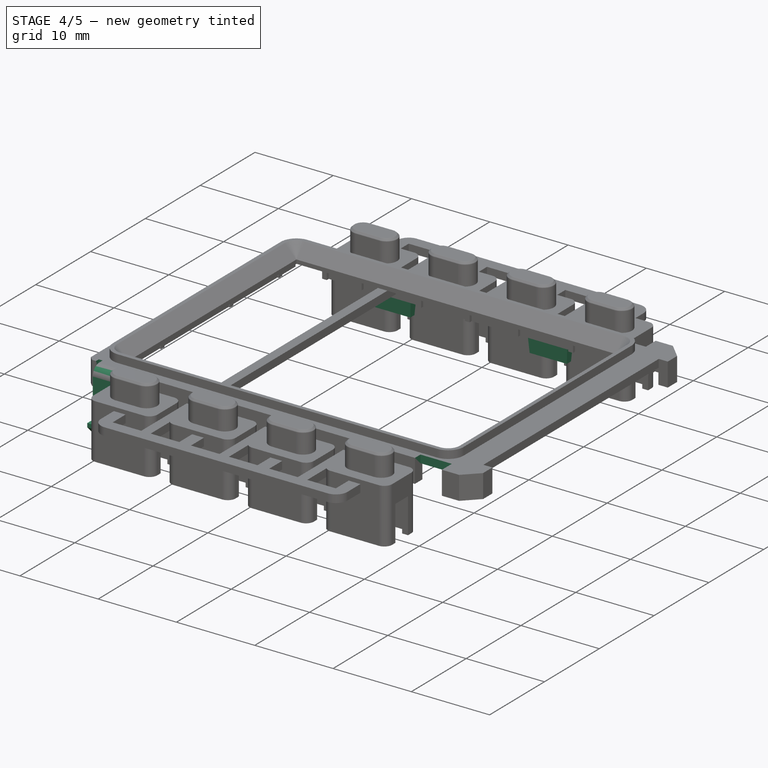
[diagram: stage 4 of 5 — iso view after this stage's code; geometry added in this stage tinted green]
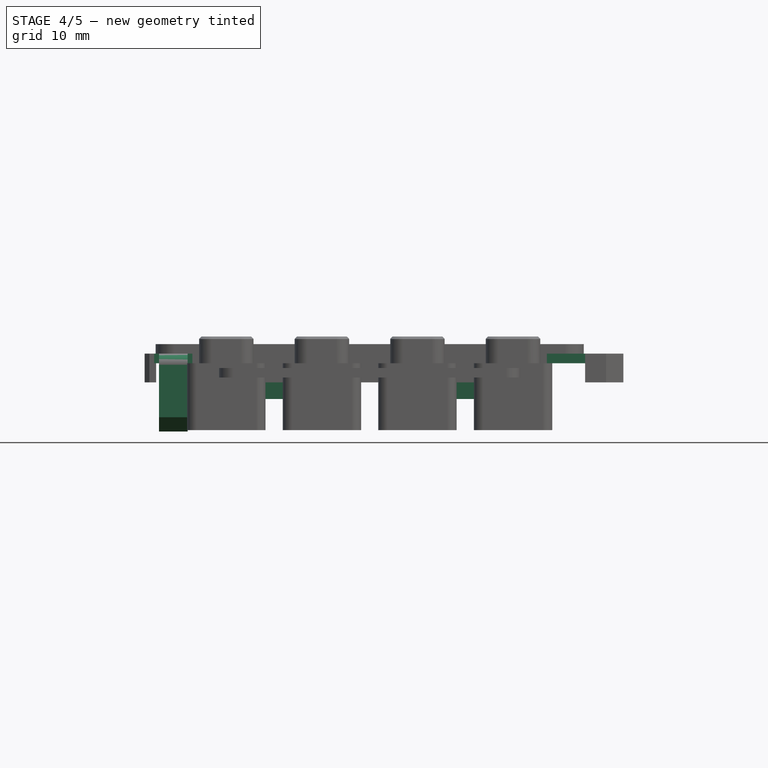
[diagram: stage 4 of 5 — front view after this stage's code; geometry added in this stage tinted green]
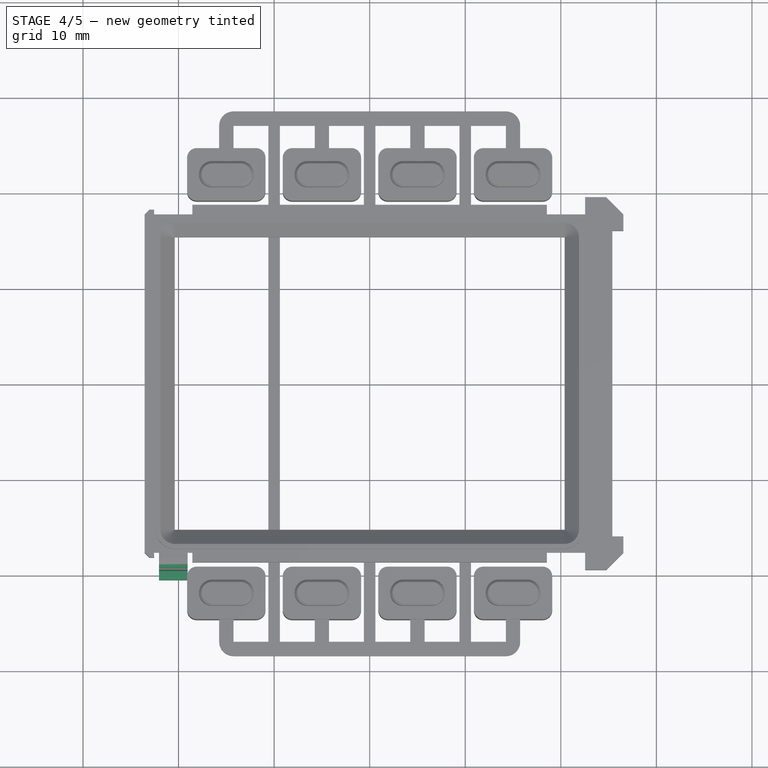
[diagram: stage 4 of 5 — top view after this stage's code; geometry added in this stage tinted green]
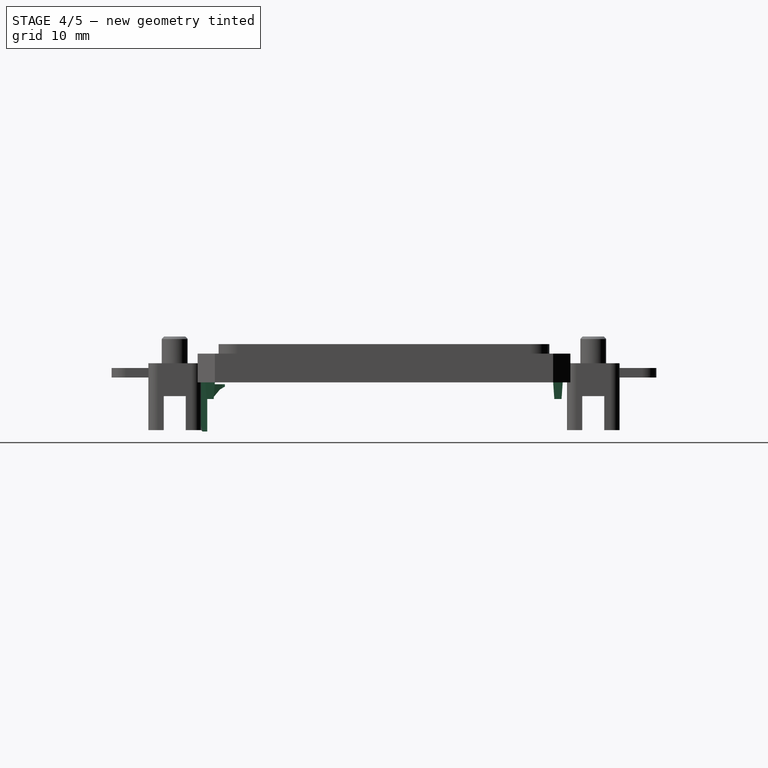
[diagram: stage 4 of 5 — right view after this stage's code; geometry added in this stage tinted green]
FEATURE [PartDesign::Pocket] Pocket001
  BaseFeature = -> Mirrored001
  Direction = (0,0,-1)
  Length = 5
  Length2 = 5
  Profile = -> Sketch022
  ReferenceAxis = -> Sketch022 [N_Axis]
  Refine = true
  Reversed = true
  Suppressed = false
  Type = 0
FEATURE [PartDesign::Mirrored] Mirrored
  BaseFeature = -> Pocket001
  MirrorPlane = -> XZ_Plane
  Originals = -> [Pocket001]
  Refine = true
  Suppressed = false
  TransformMode = 0
FEATURE [PartDesign::Pad] Pad009
  BaseFeature = -> Mirrored
  Direction = (0,-1e-16,-1)
  Length = 1.75
  Length2 = 10
  Profile = -> Sketch025
  ReferenceAxis = -> Sketch025 [N_Axis]
  Refine = true
  Suppressed = false
  TaperAngle = -4
  Type = 0
  expr: Length = 3.15 - 1.2 - 0.2
FEATURE [PartDesign::CoordinateSystem] LCS_2
  AttacherType = Attacher::AttachEngine3D
FEATURE [Sketcher::SketchObject] Sketch_1
  ArcFitTolerance = 1e-06
  AttachmentOffset = pos=(0,0,10) rot=(0,0,1;0rad)
  AttachmentSupport = -> [YZ_Plane]
  FullyConstrained = true
  MakeInternals = false
  MapMode = 5
  Placement = pos=(10,0,0) rot=(0.57735,0.57735,0.57735;2.0944rad)
  sketch-geometry (5):
    g0: LineSegment [constr] StartX=-17.7 StartY=-2 StartZ=0 EndX=-17.8224 EndY=-3.75 EndZ=0
    g1: LineSegment StartX=-17.714 StartY=-2.2 StartZ=0 EndX=-16.914 EndY=-2.2 EndZ=0
    g2: LineSegment StartX=-16.914 StartY=-2.2 StartZ=0 EndX=-16.914 EndY=-2.45 EndZ=0
    g3: LineSegment StartX=-16.914 StartY=-2.45 StartZ=0 EndX=-17.8058 EndY=-3.51281 EndZ=0
    g4: LineSegment StartX=-17.8058 StartY=-3.51281 StartZ=0 EndX=-17.714 EndY=-2.2 EndZ=0
  constraints (16):
    c: Distance(g0,g-2) = 17.7
    c: Distance(g0,g-1) = 2
    c: Angle(g-1,g0) = 1.50098
    c: DistanceY(g0,g0) = 1.75
    c: PointOnObject(g1,g0)
    c: Horizontal(g1)
    c: Coincident(g2,g1)
    c: Vertical(g2)
    c: Coincident(g3,g2)
    c: PointOnObject(g3,g0)
    c: DistanceX(g1,g1) = 0.8
    c: DistanceY(g2,g2) = 0.25
    c: Distance(g-1,g1) = 2.2
    c: Angle(g-1,g3) = 0.872665
    c: Coincident(g4,g3)
    c: Coincident(g4,g1)
FEATURE [PartDesign::Pad] Pad012
  BaseFeature = -> Pad009
  Direction = (1,0,0)
  Length = 3
  Length2 = 10
  Midplane = true
  Profile = -> Sketch_1
  ReferenceAxis = -> Sketch_1 [N_Axis]
  Refine = true
  Suppressed = false
  Type = 0
FEATURE [PartDesign::Draft] Draft
  Angle = 15
  Base = -> Pad012 [Face163,Face161]
  BaseFeature = -> Pad012
  NeutralPlane = -> Pad012 [Face160]
  Refine = true
  Reversed = true
  SupportTransform = false
  Suppressed = false
FEATURE [PartDesign::Pad] Pad006  label="Snap-fit1"
  BaseFeature = -> Draft
  Direction = (1,0,0)
  Length = 3
  Length2 = 10
  Midplane = true
  Profile = -> Sketch023
  ReferenceAxis = -> Sketch023 [N_Axis]
  Refine = true
  Suppressed = false
  Type = 0
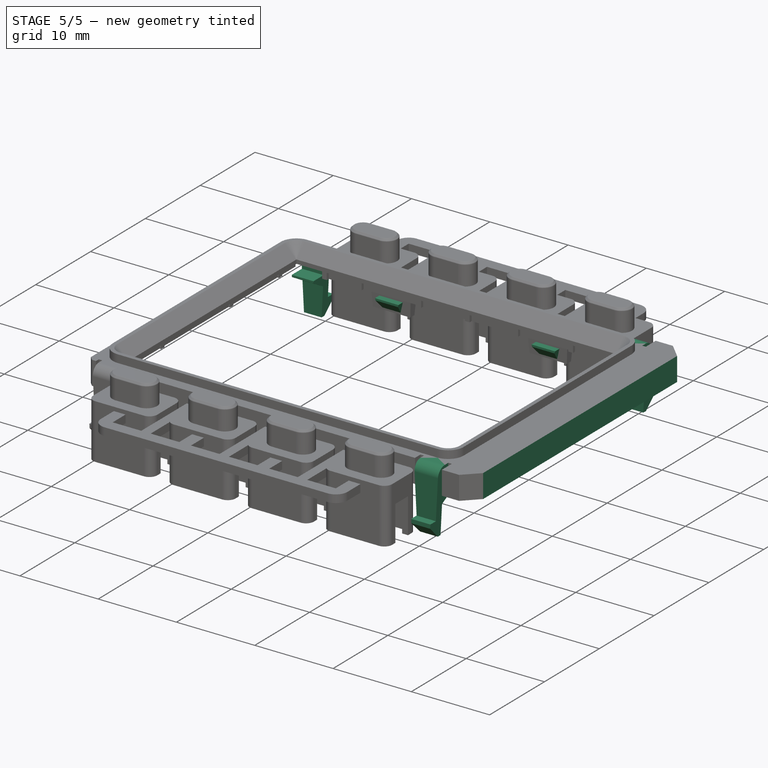
[diagram: stage 5 of 5 — iso view after this stage's code; geometry added in this stage tinted green]
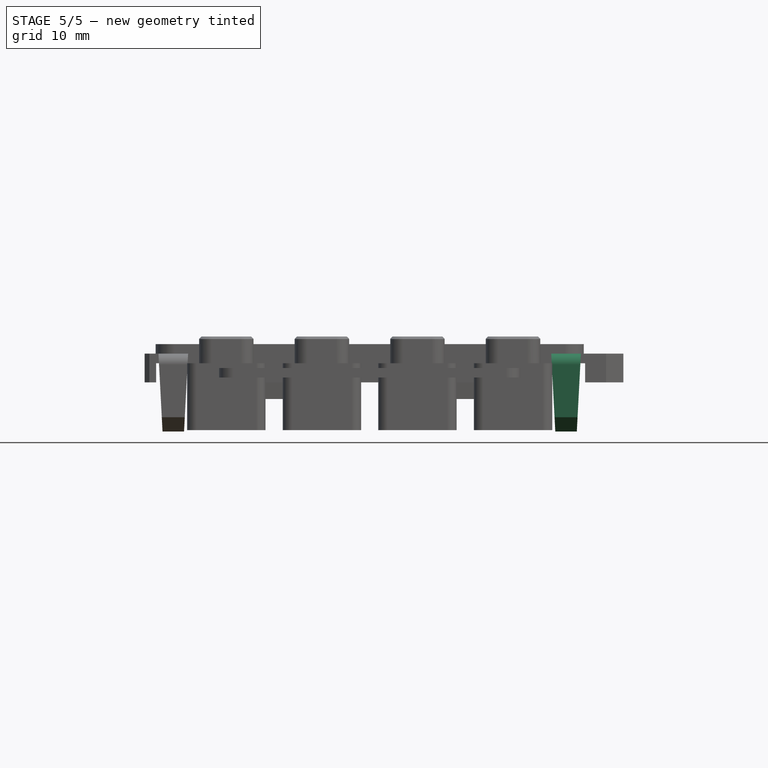
[diagram: stage 5 of 5 — front view after this stage's code; geometry added in this stage tinted green]
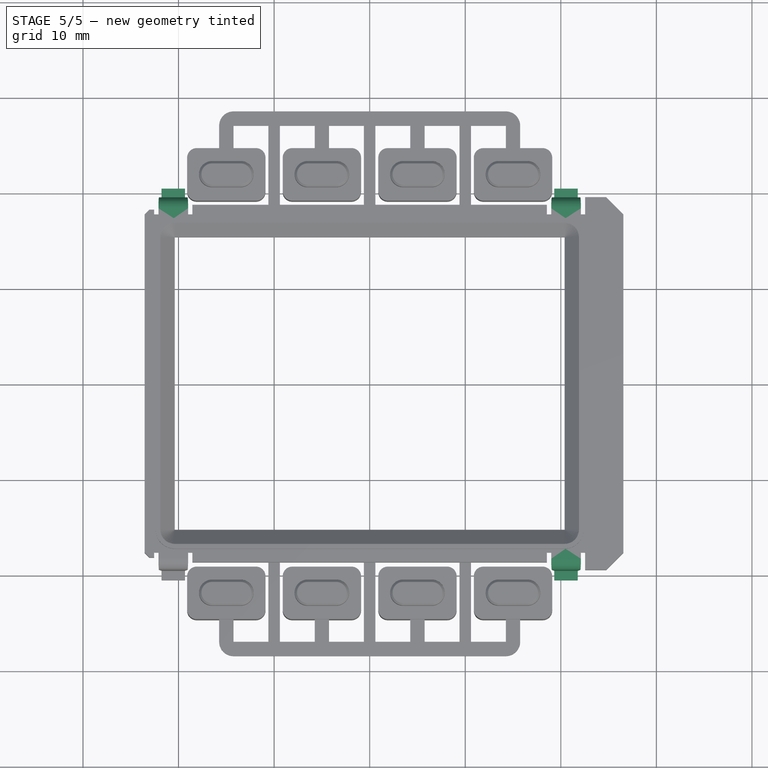
[diagram: stage 5 of 5 — top view after this stage's code; geometry added in this stage tinted green]
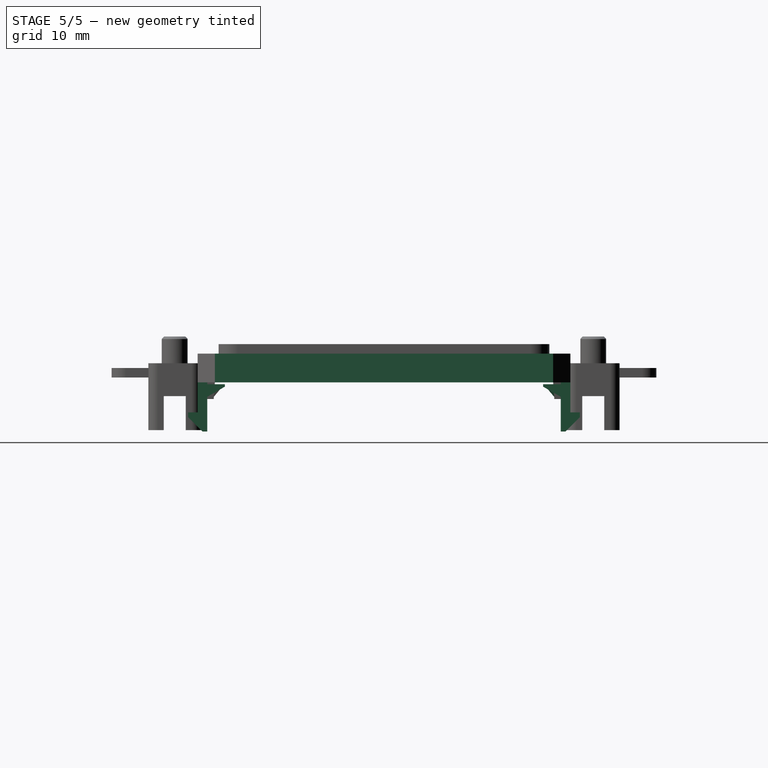
[diagram: stage 5 of 5 — right view after this stage's code; geometry added in this stage tinted green]
FEATURE [PartDesign::MultiTransform] MultiTransform
  BaseFeature = -> Pad006
  Originals = -> [Pad006]
  Refine = true
  Suppressed = false
  TransformMode = 0
  Transformations = -> [Mirrored002,Mirrored003]
FEATURE [PartDesign::Mirrored] Mirrored004
  MirrorPlane = -> YZ_Plane
  Refine = true
  Suppressed = false
  TransformMode = 0
FEATURE [PartDesign::Mirrored] Mirrored005
  MirrorPlane = -> XZ_Plane
  Refine = true
  Suppressed = false
  TransformMode = 0
FEATURE [Sketcher::SketchObject] Sketch029
  ArcFitTolerance = 1e-06
  AttachmentSupport = -> [XZ_Plane]
  FullyConstrained = true
  MakeInternals = false
  MapMode = 5
  Placement = pos=(0,0,0) rot=(1,0,0;1.5708rad)
  sketch-geometry (6):
    g0: LineSegment StartX=26.55 StartY=0 StartZ=0 EndX=26.55 EndY=-2 EndZ=0
    g1: LineSegment StartX=26.55 StartY=-2 StartZ=0 EndX=26.1279 EndY=-2 EndZ=0
    g2: LineSegment StartX=26.1279 StartY=-2 StartZ=0 EndX=25.4 EndY=0 EndZ=0
    g3: LineSegment StartX=26.55 StartY=0 StartZ=0 EndX=26.55 EndY=1 EndZ=0
    g4: LineSegment StartX=26.55 StartY=1 StartZ=0 EndX=25.4 EndY=1 EndZ=0
    g5: LineSegment StartX=25.4 StartY=1 StartZ=0 EndX=25.4 EndY=0 EndZ=0
  constraints (19):
    c: PointOnObject(g0,g-1)
    c: Vertical(g0)
    c: Coincident(g1,g0)
    c: Horizontal(g1)
    c: Coincident(g2,g1)
    c: DistanceX(g-1,g0) = 26.55
    c: DistanceX(g2,g0) = 1.15
    c: DistanceY(g0,g0) = 2
    c: Angle(g2,g-1) = 1.22173
    c: Coincident(g3,g0)
    c: Vertical(g3)
    c: Coincident(g4,g3)
    c: Coincident(g5,g4)
    c: Coincident(g5,g2)
    c: Vertical(g5)
    c: Horizontal(g4)
    c: DistanceY(g3,g3) = 1
    c: PointOnObject(g2,g-1)
    c: DistanceX(g1,g1) = 0.42206
FEATURE [PartDesign::Pad] Pad013
  BaseFeature = -> MultiTransform
  Direction = (0,-1,2e-16)
  Length = 32
  Length2 = 10
  Midplane = true
  Profile = -> Sketch029
  ReferenceAxis = -> Sketch029 [N_Axis]
  Refine = true
  Suppressed = false
  Type = 0
FEATURE [PartDesign::MultiTransform] MultiTransform001
  BaseFeature = -> Pad013
  Originals = -> [Pad012,Draft]
  Refine = true
  Suppressed = false
  TransformMode = 0
  Transformations = -> [Mirrored004,Mirrored005]
FEATURE [PartDesign::Draft] Draft001
  Angle = 3
  Base = -> MultiTransform001 [Face40,Face42,Face34,Face32,Face22,Face20,Face12,Face14]
  BaseFeature = -> MultiTransform001
  NeutralPlane = -> MultiTransform001 [Face61]
  Refine = true
  SupportTransform = false
  Suppressed = false
FEATURE [PartDesign::Body] Body006  label="PLASTIC-VSN1-DISPLAY-INTERFACE_buttons"
  AllowCompound = false
  Group = -> [Boolean,LCS_2,Mirrored006]
  Origin = -> Origin006
  Tip = -> Mirrored006
FEATURE [PartDesign::Boolean] Boolean001
  BaseFeature = -> Draft001
  Group = -> [Body006]
  Refine = true
  Suppressed = false
  Type = 0
  UsePlacement = true
FEATURE [Sketcher::SketchObject] Sketch030
  ArcFitTolerance = 1e-06
  AttachmentSupport = -> [XY_Plane]
  FullyConstrained = true
  MakeInternals = false
  MapMode = 5
  sketch-geometry (4):
    g0: LineSegment StartX=-8 StartY=-17.7 StartZ=0 EndX=-8 EndY=17.7 EndZ=0
    g1: LineSegment StartX=-8 StartY=17.7 StartZ=0 EndX=-12 EndY=17.7 EndZ=0
    g2: LineSegment StartX=-12 StartY=17.7 StartZ=0 EndX=-12 EndY=-17.7 EndZ=0
    g3: LineSegment StartX=-12 StartY=-17.7 StartZ=0 EndX=-8 EndY=-17.7 EndZ=0
  constraints (11):
    c: Coincident(g0,g1)
    c: Coincident(g1,g2)
    c: Coincident(g2,g3)
    c: Coincident(g3,g0)
    c: Vertical(g2)
    c: Horizontal(g1)
    c: Horizontal(g3)
    c: DistanceY(g2,g2) = 35.4
    c: DistanceX(g1,g1) = 4
    c: Symmetric(g0,g0,g-1)
    c: Distance(g-2,g0) = 8
FEATURE [PartDesign::Pocket] Pocket003
  BaseFeature = -> Boolean001
  Direction = (0,0,-1)
  Length = 1.5
  Length2 = 5
  Profile = -> Sketch030
  ReferenceAxis = -> Sketch030 [N_Axis]
  Refine = true
  Suppressed = false
  Type = 0
FEATURE [PartDesign::Body] Body  label="PLASTIC-VSN1-DISPLAY-INTERFACE"
  AllowCompound = true
  Group = -> [Sketch,Sketch001,Pad,SubtractivePipe,Sketch002,Pad001,Pad008,Sketch017,Sketch019,Pad004,Mirrored001,Sketch022,DatumPlane001,Sketch023,Pocket001,Mirrored,Sketch025,Pad009,Pad012,Draft,Sketch_1,Pad006,MultiTransform,Pad013,Mirrored002,Mirrored003,LCS_1,MultiTransform001,Mirrored004,Mirrored005,Draft001,Sketch029,Boolean001,Sketch030,Pocket003]
  Origin = -> Origin
  Tip = -> Pocket003
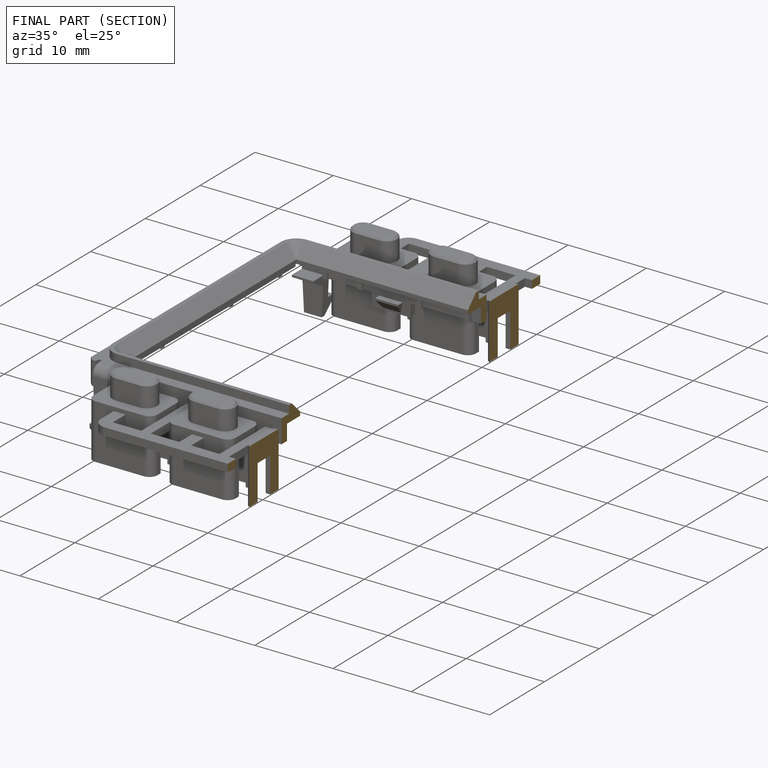
[diagram: finished part — half-section view (interior)]
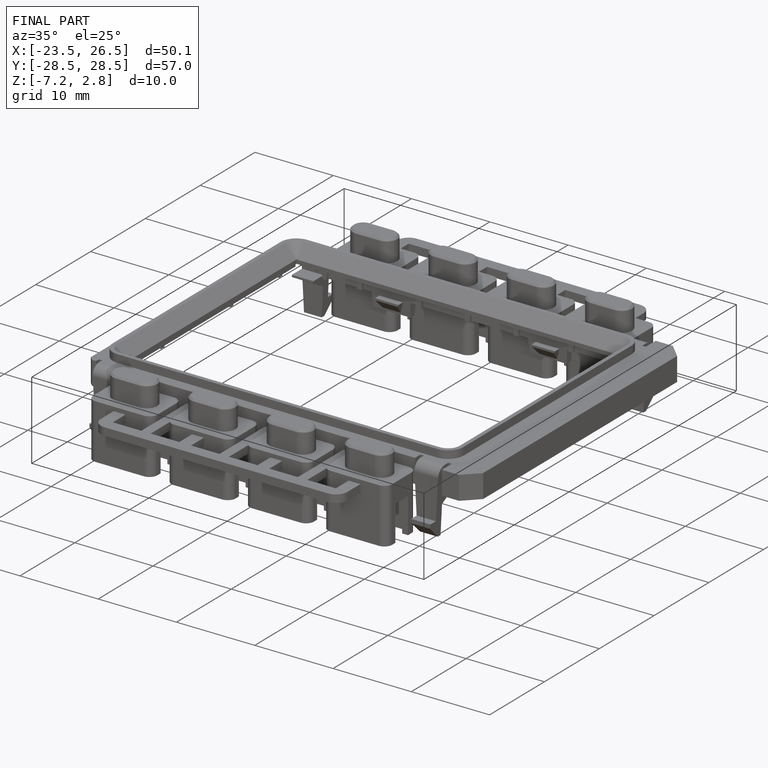
[diagram: finished part — iso view with bounding-box wireframe]
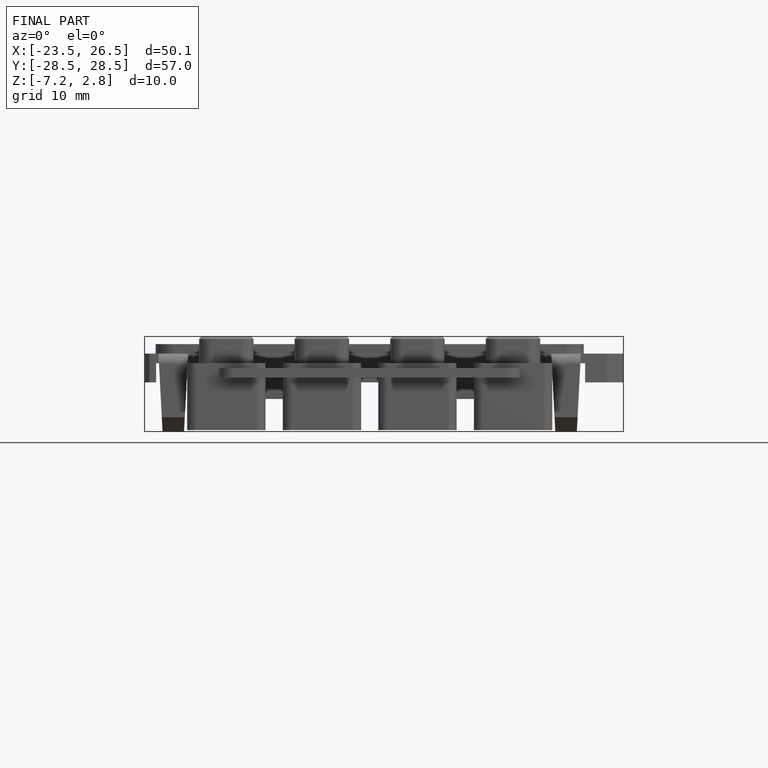
[diagram: finished part — front view with bounding-box wireframe]
